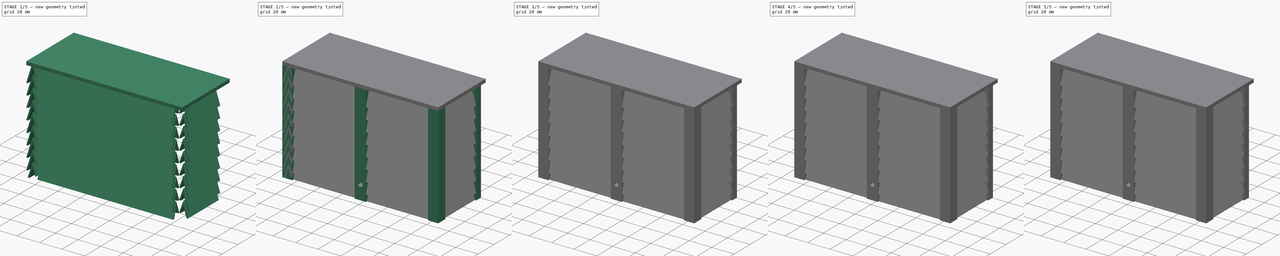
[diagram: build sequence overview — one tinted view per stage of 5, left to right]
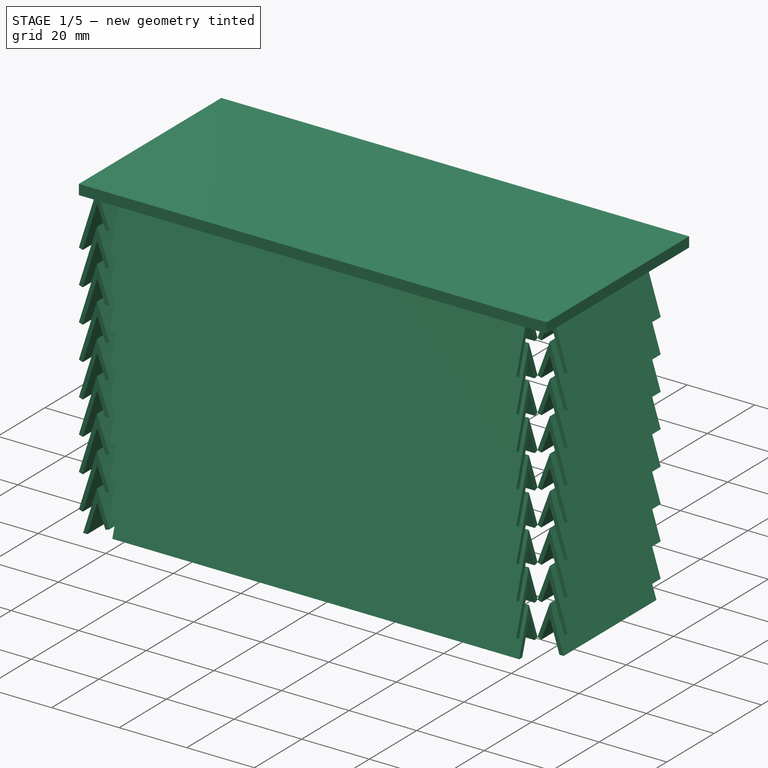
[diagram: stage 1 of 5 — iso view after this stage's code; geometry added in this stage tinted green]
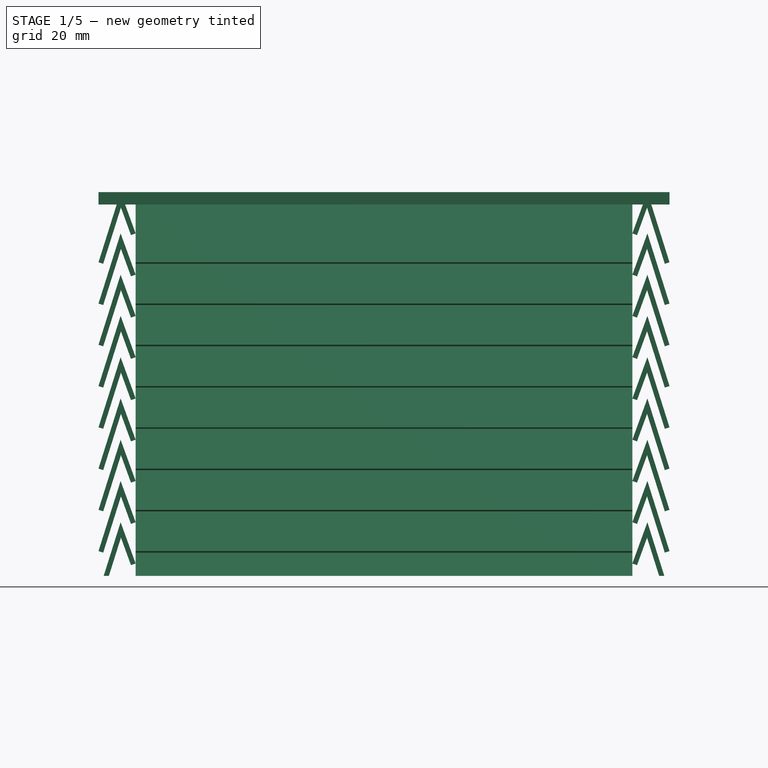
[diagram: stage 1 of 5 — front view after this stage's code; geometry added in this stage tinted green]
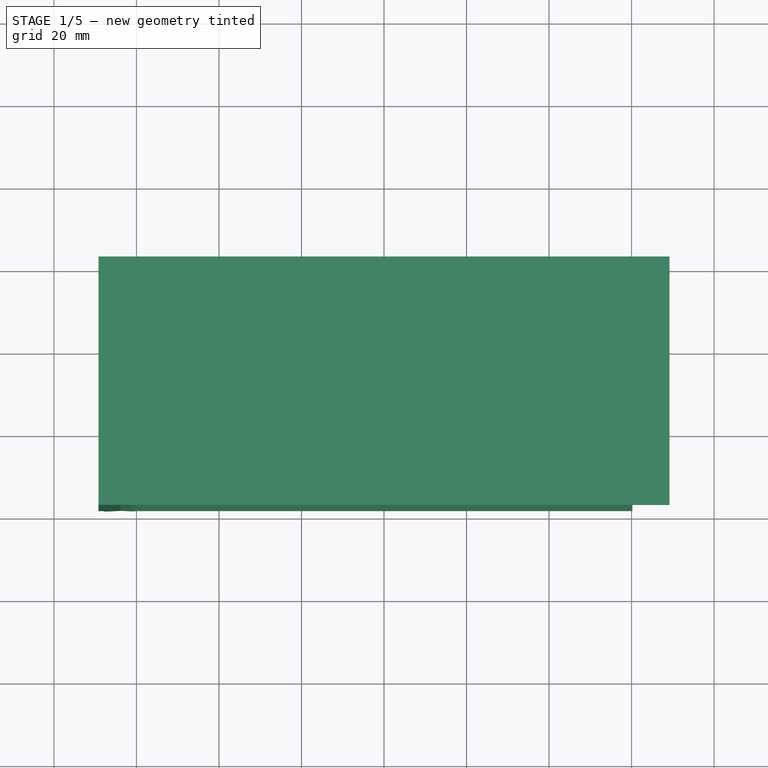
[diagram: stage 1 of 5 — top view after this stage's code; geometry added in this stage tinted green]
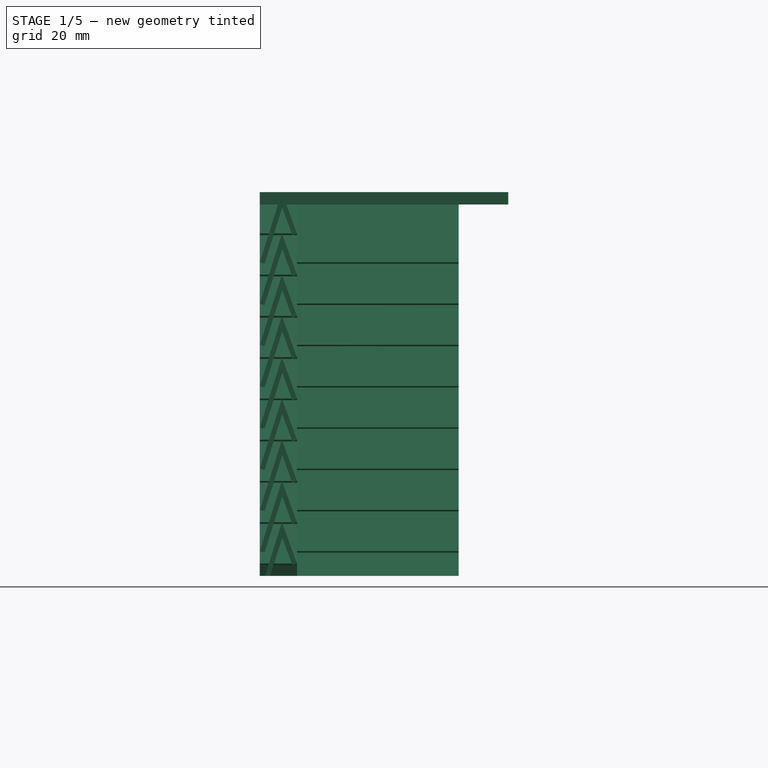
[diagram: stage 1 of 5 — right view after this stage's code; geometry added in this stage tinted green]
FCSTD DOCUMENT  (FreeCAD 0.21R33668 +26 (Git))
Label: Housing
License: All rights reserved
LicenseURL: http://en.wikipedia.org/wiki/All_rights_reserved
objects: Sketcher::SketchObject×15, Part::Extrusion×15, Part::MultiFuse×4, Part::Cut×4, Part::Box×1
note: 39 computed .brp shape members not serialized (recipe doc carries the construction recipe); baked Part::Feature solids carry a one-line shape summary decoded from their .brp

FEATURE [Part::Box] Box  label="Roof"
  AttacherType = Attacher::AttachEngine3D
  Height = 3
  Length = 138.4
  Placement = pos=(-69.2,-38.2,85) rot=(0,0,1;0rad)
  Width = 60.2
FEATURE [Sketcher::SketchObject] Sketch016
  FullyConstrained = true
  Placement = pos=(0,0,-5) rot=(0,0,1;0rad)
  sketch-geometry (22):
    g0: LineSegment StartX=69.2 StartY=16 StartZ=0 EndX=60.2 EndY=16 EndZ=0
    g1: LineSegment StartX=60.2 StartY=16 StartZ=0 EndX=63.2 EndY=13 EndZ=0
    g2: LineSegment StartX=63.2 StartY=13 StartZ=0 EndX=60.2 EndY=10 EndZ=0
    g3: LineSegment StartX=60.2 StartY=10 StartZ=0 EndX=69.2 EndY=10 EndZ=0
    g4: LineSegment StartX=69.2 StartY=16 StartZ=0 EndX=69.2 EndY=10 EndZ=0
    g5: LineSegment StartX=-60.2 StartY=16 StartZ=0 EndX=-69.2 EndY=16 EndZ=0
    g6: LineSegment StartX=-69.2 StartY=16 StartZ=0 EndX=-69.2 EndY=10 EndZ=0
    g7: LineSegment StartX=-69.2 StartY=10 StartZ=0 EndX=-60.2 EndY=10 EndZ=0
    g8: LineSegment StartX=-60.2 StartY=10 StartZ=0 EndX=-63.2 EndY=13 EndZ=0
    g9: LineSegment StartX=-63.2 StartY=13 StartZ=0 EndX=-60.2 EndY=16 EndZ=0
    g10: LineSegment StartX=-60.2 StartY=-29.2 StartZ=0 EndX=-69.2 EndY=-29.2 EndZ=0
    g11: LineSegment StartX=-69.2 StartY=-29.2 StartZ=0 EndX=-69.2 EndY=-38.2 EndZ=0
    g12: LineSegment StartX=-69.2 StartY=-38.2 StartZ=0 EndX=-60.2 EndY=-38.2 EndZ=0
    g13: LineSegment StartX=-60.2 StartY=-38.2 StartZ=0 EndX=-60.2 EndY=-29.2 EndZ=0
    g14: LineSegment StartX=5 StartY=-29.2 StartZ=0 EndX=-5 EndY=-29.2 EndZ=0
    g15: LineSegment StartX=-5 StartY=-29.2 StartZ=0 EndX=-5 EndY=-38.2 EndZ=0
    g16: LineSegment StartX=-5 StartY=-38.2 StartZ=0 EndX=5 EndY=-38.2 EndZ=0
    g17: LineSegment StartX=5 StartY=-38.2 StartZ=0 EndX=5 EndY=-29.2 EndZ=0
    g18: LineSegment StartX=60.2 StartY=-29.2 StartZ=0 EndX=69.2 EndY=-29.2 EndZ=0
    g19: LineSegment StartX=69.2 StartY=-29.2 StartZ=0 EndX=69.2 EndY=-38.2 EndZ=0
    g20: LineSegment StartX=69.2 StartY=-38.2 StartZ=0 EndX=60.2 EndY=-38.2 EndZ=0
    g21: LineSegment StartX=60.2 StartY=-38.2 StartZ=0 EndX=60.2 EndY=-29.2 EndZ=0
  constraints (64):
    c: Horizontal(g0)
    c: Coincident(g1,g0)
    c: Coincident(g2,g1)
    c: Coincident(g3,g2)
    c: Horizontal(g3)
    c: Coincident(g4,g0)
    c: Vertical(g4)
    c: Coincident(g3,g4)
    c: Angle(g1) = -0.785398
    c: Perpendicular(g2,g1)
    c: Equal(g2,g1)
    c: DistanceX(g1,g0) = 6
    c: Horizontal(g5)
    c: Coincident(g6,g5)
    c: Vertical(g6)
    c: Horizontal(g7)
    c: Coincident(g8,g7)
    c: Coincident(g9,g8)
    c: Coincident(g9,g5)
    c: Horizontal(g0,g5)
    c: Horizontal(g6,g3)
    c: Parallel(g2,g9)
    c: Parallel(g8,g1)
    c: Equal(g3,g7)
    c: Coincident(g6,g7)
    c: Symmetric(g1,g8,g-2)
    c: Coincident(g10,g11)
    c: Coincident(g11,g12)
    c: Coincident(g12,g13)
    c: Coincident(g13,g10)
    c: Horizontal(g10)
    c: Horizontal(g12)
    c: Vertical(g11)
    c: Vertical(g13)
    c: Coincident(g14,g15)
    c: Coincident(g15,g16)
    c: Coincident(g16,g17)
    c: Coincident(g17,g14)
    c: Horizontal(g16)
    c: Vertical(g15)
    c: Vertical(g17)
    c: Coincident(g18,g19)
    c: Coincident(g19,g20)
    c: Coincident(g20,g21)
    c: Coincident(g21,g18)
    c: Horizontal(g18)
    c: Horizontal(g20)
    c: Vertical(g19)
    c: Vertical(g21)
    c: Vertical(g6,g10)
    c: Vertical(g5,g12)
    c: Horizontal(g10,g14)
    c: Horizontal(g14,g18)
    c: Horizontal(g12,g15)
    c: Horizontal(g15,g20)
    c: Vertical(g2,g18)
    c: Vertical(g19,g0)
    c: Symmetric(g14,g14,g-2)
    c: Equal(g11,g10)
    c: DistanceX(g20,g20) = 9
    c: DistanceX(g5,g0) = 138.4
    c: DistanceY(g-1,g5) = 16
    c: DistanceY(g10,g-1) = 29.2
    c: DistanceX(g14,g14) = 10
FEATURE [Part::Extrusion] Extrude018  label="Main columns"
  Base = -> Sketch016
  Dir = (0,0,1)
  DirMode = 2
  FaceMakerClass = Part::FaceMakerBullseye
  LengthFwd = 93
  LengthRev = 0
  Solid = true
  Symmetric = false
FEATURE [Sketcher::SketchObject] Sketch027
  FullyConstrained = true
  Placement = pos=(0,0,0) rot=(0.57735,0.57735,0.57735;2.0944rad)
  sketch-geometry (54):
    g0: LineSegment StartX=-38.2 StartY=71 StartZ=0 EndX=-32.8397 EndY=88 EndZ=0
    g1: LineSegment StartX=-32.8397 StartY=88 StartZ=0 EndX=-29.2 EndY=78 EndZ=0
    g2: LineSegment StartX=-29.2 StartY=78 StartZ=0 EndX=-30.3276 EndY=77.5896 EndZ=0
    g3: LineSegment StartX=-30.3276 StartY=77.5896 StartZ=0 EndX=-32.7583 EndY=84.2677 EndZ=0
    g4: LineSegment StartX=-32.7583 StartY=84.2677 StartZ=0 EndX=-37.0555 EndY=70.6391 EndZ=0
    g5: LineSegment StartX=-37.0555 StartY=70.6391 StartZ=0 EndX=-38.2 EndY=71 EndZ=0
    g6: LineSegment StartX=-32.8397 StartY=78 StartZ=0 EndX=-29.2 EndY=68 EndZ=0
    g7: LineSegment StartX=-32.8397 StartY=78 StartZ=0 EndX=-38.2 EndY=61 EndZ=0
    g8: LineSegment StartX=-38.2 StartY=61 StartZ=0 EndX=-37.0555 EndY=60.6391 EndZ=0
    g9: LineSegment StartX=-37.0555 StartY=60.6391 StartZ=0 EndX=-32.7583 EndY=74.2677 EndZ=0
    g10: LineSegment StartX=-32.7583 StartY=74.2677 StartZ=0 EndX=-30.3276 EndY=67.5896 EndZ=0
    g11: LineSegment StartX=-30.3276 StartY=67.5896 StartZ=0 EndX=-29.2 EndY=68 EndZ=0
    g12: LineSegment StartX=-32.8397 StartY=68 StartZ=0 EndX=-29.2 EndY=58 EndZ=0
    g13: LineSegment StartX=-32.8397 StartY=68 StartZ=0 EndX=-38.2 EndY=51 EndZ=0
    g14: LineSegment StartX=-38.2 StartY=51 StartZ=0 EndX=-37.0555 EndY=50.6391 EndZ=0
    g15: LineSegment StartX=-37.0555 StartY=50.6391 StartZ=0 EndX=-32.7583 EndY=64.2677 EndZ=0
    g16: LineSegment StartX=-32.7583 StartY=64.2677 StartZ=0 EndX=-30.3276 EndY=57.5896 EndZ=0
    g17: LineSegment StartX=-30.3276 StartY=57.5896 StartZ=0 EndX=-29.2 EndY=58 EndZ=0
    g18: LineSegment StartX=-32.8397 StartY=58 StartZ=0 EndX=-29.2 EndY=48 EndZ=0
    g19: LineSegment StartX=-32.8397 StartY=58 StartZ=0 EndX=-38.2 EndY=41 EndZ=0
    g20: LineSegment StartX=-38.2 StartY=41 StartZ=0 EndX=-37.0555 EndY=40.6391 EndZ=0
    g21: LineSegment StartX=-37.0555 StartY=40.6391 StartZ=0 EndX=-32.7583 EndY=54.2677 EndZ=0
    g22: LineSegment StartX=-32.7583 StartY=54.2677 StartZ=0 EndX=-30.3276 EndY=47.5896 EndZ=0
    g23: LineSegment StartX=-30.3276 StartY=47.5896 StartZ=0 EndX=-29.2 EndY=48 EndZ=0
    g24: LineSegment StartX=-32.8397 StartY=48 StartZ=0 EndX=-29.2 EndY=38 EndZ=0
    g25: LineSegment StartX=-32.8397 StartY=48 StartZ=0 EndX=-38.2 EndY=31 EndZ=0
    g26: LineSegment StartX=-38.2 StartY=31 StartZ=0 EndX=-37.0555 EndY=30.6391 EndZ=0
    g27: LineSegment StartX=-37.0555 StartY=30.6391 StartZ=0 EndX=-32.7583 EndY=44.2677 EndZ=0
    g28: LineSegment StartX=-32.7583 StartY=44.2677 StartZ=0 EndX=-30.3276 EndY=37.5896 EndZ=0
    g29: LineSegment StartX=-30.3276 StartY=37.5896 StartZ=0 EndX=-29.2 EndY=38 EndZ=0
    g30: LineSegment StartX=-32.8397 StartY=38 StartZ=0 EndX=-29.2 EndY=28 EndZ=0
    g31: LineSegment StartX=-32.8397 StartY=38 StartZ=0 EndX=-38.2 EndY=21 EndZ=0
    g32: LineSegment StartX=-38.2 StartY=21 StartZ=0 EndX=-37.0555 EndY=20.6391 EndZ=0
    g33: LineSegment StartX=-37.0555 StartY=20.6391 StartZ=0 EndX=-32.7583 EndY=34.2677 EndZ=0
    g34: LineSegment StartX=-32.7583 StartY=34.2677 StartZ=0 EndX=-30.3276 EndY=27.5896 EndZ=0
    g35: LineSegment StartX=-30.3276 StartY=27.5896 StartZ=0 EndX=-29.2 EndY=28 EndZ=0
    g36: LineSegment StartX=-32.8397 StartY=28 StartZ=0 EndX=-29.2 EndY=18 EndZ=0
    g37: LineSegment StartX=-32.8397 StartY=28 StartZ=0 EndX=-38.2 EndY=11 EndZ=0
    g38: LineSegment StartX=-38.2 StartY=11 StartZ=0 EndX=-37.0555 EndY=10.6391 EndZ=0
    g39: LineSegment StartX=-37.0555 StartY=10.6391 StartZ=0 EndX=-32.7583 EndY=24.2677 EndZ=0
    g40: LineSegment StartX=-32.7583 StartY=24.2677 StartZ=0 EndX=-30.3276 EndY=17.5896 EndZ=0
    g41: LineSegment StartX=-30.3276 StartY=17.5896 StartZ=0 EndX=-29.2 EndY=18 EndZ=0
    g42: LineSegment StartX=-32.8397 StartY=18 StartZ=0 EndX=-29.2 EndY=8 EndZ=0
    g43: LineSegment StartX=-32.8397 StartY=18 StartZ=0 EndX=-38.2 EndY=1 EndZ=0
    g44: LineSegment StartX=-38.2 StartY=1 StartZ=0 EndX=-37.0555 EndY=0.63914 EndZ=0
    g45: LineSegment StartX=-37.0555 StartY=0.63914 StartZ=0 EndX=-32.7583 EndY=14.2677 EndZ=0
    g46: LineSegment StartX=-32.7583 StartY=14.2677 StartZ=0 EndX=-30.3276 EndY=7.58958 EndZ=0
    g47: LineSegment StartX=-30.3276 StartY=7.58958 StartZ=0 EndX=-29.2 EndY=8 EndZ=0
    g48: LineSegment StartX=-32.8397 StartY=8 StartZ=0 EndX=-29.2 EndY=-2 EndZ=0
    g49: LineSegment StartX=-32.7583 StartY=4.26775 StartZ=0 EndX=-30.3276 EndY=-2.41042 EndZ=0
    g50: LineSegment StartX=-30.3276 StartY=-2.41042 StartZ=0 EndX=-29.2 EndY=-2 EndZ=0
    g51: LineSegment StartX=-32.8397 StartY=8 StartZ=0 EndX=-36.9388 EndY=-5 EndZ=0
    g52: LineSegment StartX=-32.7583 StartY=4.26775 StartZ=0 EndX=-35.6805 EndY=-5 EndZ=0
    g53: LineSegment StartX=-36.9388 StartY=-5 StartZ=0 EndX=-35.6805 EndY=-5 EndZ=0
  constraints (162):
    c: Coincident(g1,g0)
    c: Coincident(g2,g1)
    c: Coincident(g3,g2)
    c: Coincident(g4,g3)
    c: Coincident(g5,g4)
    c: Coincident(g5,g0)
    c: Distance(g2) = 1.2
    c: Equal(g2,g5)
    c: Perpendicular(g2,g1)
    c: Perpendicular(g2,g3)
    c: Perpendicular(g4,g5)
    c: Perpendicular(g0,g5)
    c: DistanceY(g0,g0) = 17
    c: DistanceY(g1,g0) = 10
    c: DistanceX(g0,g1) = 9
    c: DistanceY(g1) = 78
    c: Angle(g1) = -1.22173
    c: DistanceX(g1,g-1) = 29.2
    c: Horizontal(g6,g1)
    c: Vertical(g1,g6)
    c: Parallel(g6,g1)
    c: Vertical(g6,g0)
    c: Coincident(g7,g6)
    c: Parallel(g7,g0)
    c: Vertical(g7,g0)
    c: Coincident(g8,g7)
    c: Coincident(g9,g8)
    c: Coincident(g10,g9)
    c: Coincident(g11,g10)
    c: Coincident(g11,g6)
    c: Vertical(g3,g9)
    c: Equal(g8,g11)
    c: Equal(g11,g2)
    c: Parallel(g9,g7)
    c: Parallel(g8,g5)
    c: Parallel(g11,g2)
    c: Coincident(g13,g12)
    c: Coincident(g14,g13)
    c: Coincident(g15,g14)
    c: Coincident(g16,g15)
    c: Coincident(g17,g16)
    c: Coincident(g17,g12)
    c: Equal(g14,g17)
    c: Parallel(g15,g13)
    c: Horizontal(g12,g6)
    c: Vertical(g12,g6)
    c: Vertical(g9,g15)
    c: Parallel(g12,g6)
    c: Parallel(g13,g7)
    c: Equal(g17,g11)
    c: Vertical(g6,g12)
    c: Parallel(g17,g11)
    c: Vertical(g13,g7)
    c: Parallel(g14,g8)
    c: Coincident(g19,g18)
    c: Coincident(g20,g19)
    c: Coincident(g21,g20)
    c: Coincident(g22,g21)
    c: Coincident(g23,g22)
    c: Coincident(g23,g18)
    c: Equal(g20,g23)
    c: Parallel(g21,g19)
    c: Coincident(g25,g24)
    c: Coincident(g26,g25)
    c: Coincident(g27,g26)
    c: Coincident(g28,g27)
    c: Coincident(g29,g28)
    c: Coincident(g29,g24)
    c: Equal(g26,g29)
    c: Parallel(g27,g25)
    c: Horizontal(g24,g18)
    c: Vertical(g24,g18)
    c: Vertical(g21,g27)
    c: Parallel(g24,g18)
    c: Parallel(g25,g19)
    c: Equal(g29,g23)
    c: Vertical(g18,g24)
    c: Parallel(g29,g23)
    c: Vertical(g25,g19)
    c: Parallel(g26,g20)
    c: Horizontal(g18,g12)
    c: Parallel(g17,g23)
    c: Vertical(g18,g12)
    c: Vertical(g12,g18)
    c: Vertical(g15,g21)
    c: Equal(g20,g14)
    c: Parallel(g20,g14)
    c: Vertical(g19,g13)
    c: Parallel(g19,g13)
    c: Parallel(g12,g18)
    c: Coincident(g31,g30)
    c: Coincident(g32,g31)
    c: Coincident(g33,g32)
    c: Coincident(g34,g33)
    c: Coincident(g35,g34)
    c: Coincident(g35,g30)
    c: Equal(g32,g35)
    c: Parallel(g33,g31)
    c: Coincident(g37,g36)
    c: Coincident(g38,g37)
    c: Coincident(g39,g38)
    c: Coincident(g40,g39)
    c: Coincident(g41,g40)
    c: Coincident(g41,g36)
    c: Equal(g38,g41)
    c: Parallel(g39,g37)
    c: Horizontal(g36,g30)
    c: Vertical(g36,g30)
    c: Vertical(g33,g39)
    c: Parallel(g36,g30)
    c: Parallel(g37,g31)
    c: Equal(g41,g35)
    c: Vertical(g30,g36)
    c: Parallel(g41,g35)
    c: Vertical(g37,g31)
    c: Parallel(g38,g32)
    c: Coincident(g43,g42)
    c: Coincident(g44,g43)
    c: Coincident(g45,g44)
    c: Coincident(g46,g45)
    c: Coincident(g47,g46)
    c: Coincident(g47,g42)
    c: Equal(g44,g47)
    c: Parallel(g45,g43)
    c: Coincident(g50,g49)
    c: Coincident(g50,g48)
    c: Horizontal(g48,g42)
    c: Vertical(g48,g42)
    c: Vertical(g45,g49)
    c: Parallel(g48,g42)
    c: Equal(g50,g47)
    c: Vertical(g42,g48)
    c: Parallel(g50,g47)
    c: Horizontal(g42,g36)
    c: Parallel(g41,g47)
    c: Vertical(g42,g36)
    c: Vertical(g36,g42)
    c: Vertical(g39,g45)
    c: Equal(g44,g38)
    c: Parallel(g44,g38)
    c: Vertical(g43,g37)
    c: Parallel(g43,g37)
    c: Parallel(g36,g42)
    c: Parallel(g24,g30)
    c: Parallel(g31,g25)
    c: Vertical(g31,g25)
    c: Vertical(g30,g24)
    c: Vertical(g27,g33)
    c: Parallel(g32,g26)
    c: Equal(g32,g26)
    c: Parallel(g35,g29)
    c: Parallel(g34,g28)
    c: Horizontal(g30,g24)
    c: Coincident(g51,g48)
    c: Coincident(g52,g49)
    c: Parallel(g45,g51)
    c: Parallel(g51,g52)
    c: Coincident(g53,g51)
    c: Coincident(g53,g52)
    c: Horizontal(g53)
    c: DistanceY(g52,g0) = 93
    c: Parallel(g49,g48)
FEATURE [Part::Extrusion] Extrude031  label="Front slats"
  Base = -> Sketch027
  Dir = (1,0,0)
  DirMode = 2
  FaceMakerClass = Part::FaceMakerBullseye
  LengthFwd = 120.4
  LengthRev = 0
  Solid = true
  Symmetric = true
FEATURE [Sketcher::SketchObject] Sketch028
  FullyConstrained = true
  MapMode = 5
  Placement = pos=(0,-29.2,0) rot=(0,0.707107,0.707107;3.14159rad)
  Support = -> [Extrude018]
  sketch-geometry (54):
    g0: LineSegment StartX=-69.2 StartY=71 StartZ=0 EndX=-63.8397 EndY=88 EndZ=0
    g1: LineSegment StartX=-63.8397 StartY=88 StartZ=0 EndX=-60.2 EndY=78 EndZ=0
    g2: LineSegment StartX=-60.2 StartY=78 StartZ=0 EndX=-61.3276 EndY=77.5896 EndZ=0
    g3: LineSegment StartX=-61.3276 StartY=77.5896 StartZ=0 EndX=-63.7583 EndY=84.2677 EndZ=0
    g4: LineSegment StartX=-63.7583 StartY=84.2677 StartZ=0 EndX=-68.0555 EndY=70.6391 EndZ=0
    g5: LineSegment StartX=-68.0555 StartY=70.6391 StartZ=0 EndX=-69.2 EndY=71 EndZ=0
    g6: LineSegment StartX=-63.8397 StartY=78 StartZ=0 EndX=-60.2 EndY=68 EndZ=0
    g7: LineSegment StartX=-63.8397 StartY=78 StartZ=0 EndX=-69.2 EndY=61 EndZ=0
    g8: LineSegment StartX=-69.2 StartY=61 StartZ=0 EndX=-68.0555 EndY=60.6391 EndZ=0
    g9: LineSegment StartX=-68.0555 StartY=60.6391 StartZ=0 EndX=-63.7583 EndY=74.2677 EndZ=0
    g10: LineSegment StartX=-63.7583 StartY=74.2677 StartZ=0 EndX=-61.3276 EndY=67.5896 EndZ=0
    g11: LineSegment StartX=-61.3276 StartY=67.5896 StartZ=0 EndX=-60.2 EndY=68 EndZ=0
    g12: LineSegment StartX=-63.8397 StartY=68 StartZ=0 EndX=-60.2 EndY=58 EndZ=0
    g13: LineSegment StartX=-63.8397 StartY=68 StartZ=0 EndX=-69.2 EndY=51 EndZ=0
    g14: LineSegment StartX=-69.2 StartY=51 StartZ=0 EndX=-68.0555 EndY=50.6391 EndZ=0
    g15: LineSegment StartX=-68.0555 StartY=50.6391 StartZ=0 EndX=-63.7583 EndY=64.2677 EndZ=0
    g16: LineSegment StartX=-63.7583 StartY=64.2677 StartZ=0 EndX=-61.3276 EndY=57.5896 EndZ=0
    g17: LineSegment StartX=-61.3276 StartY=57.5896 StartZ=0 EndX=-60.2 EndY=58 EndZ=0
    g18: LineSegment StartX=-63.8397 StartY=58 StartZ=0 EndX=-60.2 EndY=48 EndZ=0
    g19: LineSegment StartX=-63.8397 StartY=58 StartZ=0 EndX=-69.2 EndY=41 EndZ=0
    g20: LineSegment StartX=-69.2 StartY=41 StartZ=0 EndX=-68.0555 EndY=40.6391 EndZ=0
    g21: LineSegment StartX=-68.0555 StartY=40.6391 StartZ=0 EndX=-63.7583 EndY=54.2677 EndZ=0
    g22: LineSegment StartX=-63.7583 StartY=54.2677 StartZ=0 EndX=-61.3276 EndY=47.5896 EndZ=0
    g23: LineSegment StartX=-61.3276 StartY=47.5896 StartZ=0 EndX=-60.2 EndY=48 EndZ=0
    g24: LineSegment StartX=-63.8397 StartY=48 StartZ=0 EndX=-60.2 EndY=38 EndZ=0
    g25: LineSegment StartX=-63.8397 StartY=48 StartZ=0 EndX=-69.2 EndY=31 EndZ=0
    g26: LineSegment StartX=-69.2 StartY=31 StartZ=0 EndX=-68.0555 EndY=30.6391 EndZ=0
    g27: LineSegment StartX=-68.0555 StartY=30.6391 StartZ=0 EndX=-63.7583 EndY=44.2677 EndZ=0
    g28: LineSegment StartX=-63.7583 StartY=44.2677 StartZ=0 EndX=-61.3276 EndY=37.5896 EndZ=0
    g29: LineSegment StartX=-61.3276 StartY=37.5896 StartZ=0 EndX=-60.2 EndY=38 EndZ=0
    g30: LineSegment StartX=-63.8397 StartY=38 StartZ=0 EndX=-60.2 EndY=28 EndZ=0
    g31: LineSegment StartX=-63.8397 StartY=38 StartZ=0 EndX=-69.2 EndY=21 EndZ=0
    g32: LineSegment StartX=-69.2 StartY=21 StartZ=0 EndX=-68.0555 EndY=20.6391 EndZ=0
    g33: LineSegment StartX=-68.0555 StartY=20.6391 StartZ=0 EndX=-63.7583 EndY=34.2677 EndZ=0
    g34: LineSegment StartX=-63.7583 StartY=34.2677 StartZ=0 EndX=-61.3276 EndY=27.5896 EndZ=0
    g35: LineSegment StartX=-61.3276 StartY=27.5896 StartZ=0 EndX=-60.2 EndY=28 EndZ=0
    g36: LineSegment StartX=-63.8397 StartY=28 StartZ=0 EndX=-60.2 EndY=18 EndZ=0
    g37: LineSegment StartX=-63.8397 StartY=28 StartZ=0 EndX=-69.2 EndY=11 EndZ=0
    g38: LineSegment StartX=-69.2 StartY=11 StartZ=0 EndX=-68.0555 EndY=10.6391 EndZ=0
    g39: LineSegment StartX=-68.0555 StartY=10.6391 StartZ=0 EndX=-63.7583 EndY=24.2677 EndZ=0
    g40: LineSegment StartX=-63.7583 StartY=24.2677 StartZ=0 EndX=-61.3276 EndY=17.5896 EndZ=0
    g41: LineSegment StartX=-61.3276 StartY=17.5896 StartZ=0 EndX=-60.2 EndY=18 EndZ=0
    g42: LineSegment StartX=-63.8397 StartY=18 StartZ=0 EndX=-60.2 EndY=8 EndZ=0
    g43: LineSegment StartX=-63.8397 StartY=18 StartZ=0 EndX=-69.2 EndY=1 EndZ=0
    g44: LineSegment StartX=-69.2 StartY=1 StartZ=0 EndX=-68.0555 EndY=0.63914 EndZ=0
    g45: LineSegment StartX=-68.0555 StartY=0.63914 StartZ=0 EndX=-63.7583 EndY=14.2677 EndZ=0
    g46: LineSegment StartX=-63.7583 StartY=14.2677 StartZ=0 EndX=-61.3276 EndY=7.58958 EndZ=0
    g47: LineSegment StartX=-61.3276 StartY=7.58958 StartZ=0 EndX=-60.2 EndY=8 EndZ=0
    g48: LineSegment StartX=-63.8397 StartY=8 StartZ=0 EndX=-60.2 EndY=-2 EndZ=0
    g49: LineSegment StartX=-63.7583 StartY=4.26775 StartZ=0 EndX=-61.3276 EndY=-2.41042 EndZ=0
    g50: LineSegment StartX=-61.3276 StartY=-2.41042 StartZ=0 EndX=-60.2 EndY=-2 EndZ=0
    g51: LineSegment StartX=-63.8397 StartY=8 StartZ=0 EndX=-67.9388 EndY=-5 EndZ=0
    g52: LineSegment StartX=-63.7583 StartY=4.26775 StartZ=0 EndX=-66.6805 EndY=-5 EndZ=0
    g53: LineSegment StartX=-67.9388 StartY=-5 StartZ=0 EndX=-66.6805 EndY=-5 EndZ=0
  constraints (162):
    c: Coincident(g1,g0)
    c: Coincident(g2,g1)
    c: Coincident(g3,g2)
    c: Coincident(g4,g3)
    c: Coincident(g5,g4)
    c: Coincident(g5,g0)
    c: Distance(g2) = 1.2
    c: Equal(g2,g5)
    c: Perpendicular(g2,g1)
    c: Perpendicular(g2,g3)
    c: Perpendicular(g4,g5)
    c: Perpendicular(g0,g5)
    c: DistanceY(g0,g0) = 17
    c: DistanceY(g1,g0) = 10
    c: DistanceX(g0,g1) = 9
    c: DistanceY(g1) = 78
    c: Angle(g1) = -1.22173
    c: Horizontal(g6,g1)
    c: Vertical(g1,g6)
    c: Parallel(g6,g1)
    c: Vertical(g6,g0)
    c: Coincident(g7,g6)
    c: Parallel(g7,g0)
    c: Vertical(g7,g0)
    c: Coincident(g8,g7)
    c: Coincident(g9,g8)
    c: Coincident(g10,g9)
    c: Coincident(g11,g10)
    c: Coincident(g11,g6)
    c: Vertical(g3,g9)
    c: Equal(g8,g11)
    c: Equal(g11,g2)
    c: Parallel(g9,g7)
    c: Parallel(g8,g5)
    c: Parallel(g11,g2)
    c: Coincident(g13,g12)
    c: Coincident(g14,g13)
    c: Coincident(g15,g14)
    c: Coincident(g16,g15)
    c: Coincident(g17,g16)
    c: Coincident(g17,g12)
    c: Equal(g14,g17)
    c: Parallel(g15,g13)
    c: Horizontal(g12,g6)
    c: Vertical(g12,g6)
    c: Vertical(g9,g15)
    c: Parallel(g12,g6)
    c: Parallel(g13,g7)
    c: Equal(g17,g11)
    c: Vertical(g6,g12)
    c: Parallel(g17,g11)
    c: Vertical(g13,g7)
    c: Parallel(g14,g8)
    c: Coincident(g19,g18)
    c: Coincident(g20,g19)
    c: Coincident(g21,g20)
    c: Coincident(g22,g21)
    c: Coincident(g23,g22)
    c: Coincident(g23,g18)
    c: Equal(g20,g23)
    c: Parallel(g21,g19)
    c: Coincident(g25,g24)
    c: Coincident(g26,g25)
    c: Coincident(g27,g26)
    c: Coincident(g28,g27)
    c: Coincident(g29,g28)
    c: Coincident(g29,g24)
    c: Equal(g26,g29)
    c: Parallel(g27,g25)
    c: Horizontal(g24,g18)
    c: Vertical(g24,g18)
    c: Vertical(g21,g27)
    c: Parallel(g24,g18)
    c: Parallel(g25,g19)
    c: Equal(g29,g23)
    c: Vertical(g18,g24)
    c: Parallel(g29,g23)
    c: Vertical(g25,g19)
    c: Parallel(g26,g20)
    c: Horizontal(g18,g12)
    c: Parallel(g17,g23)
    c: Vertical(g18,g12)
    c: Vertical(g12,g18)
    c: Vertical(g15,g21)
    c: Equal(g20,g14)
    c: Parallel(g20,g14)
    c: Vertical(g19,g13)
    c: Parallel(g19,g13)
    c: Parallel(g12,g18)
    c: Coincident(g31,g30)
    c: Coincident(g32,g31)
    c: Coincident(g33,g32)
    c: Coincident(g34,g33)
    c: Coincident(g35,g34)
    c: Coincident(g35,g30)
    c: Equal(g32,g35)
    c: Parallel(g33,g31)
    c: Coincident(g37,g36)
    c: Coincident(g38,g37)
    c: Coincident(g39,g38)
    c: Coincident(g40,g39)
    c: Coincident(g41,g40)
    c: Coincident(g41,g36)
    c: Equal(g38,g41)
    c: Parallel(g39,g37)
    c: Horizontal(g36,g30)
    c: Vertical(g36,g30)
    c: Vertical(g33,g39)
    c: Parallel(g36,g30)
    c: Parallel(g37,g31)
    c: Equal(g41,g35)
    c: Vertical(g30,g36)
    c: Parallel(g41,g35)
    c: Vertical(g37,g31)
    c: Parallel(g38,g32)
    c: Coincident(g43,g42)
    c: Coincident(g44,g43)
    c: Coincident(g45,g44)
    c: Coincident(g46,g45)
    c: Coincident(g47,g46)
    c: Coincident(g47,g42)
    c: Equal(g44,g47)
    c: Parallel(g45,g43)
    c: Coincident(g50,g49)
    c: Coincident(g50,g48)
    c: Horizontal(g48,g42)
    c: Vertical(g48,g42)
    c: Vertical(g45,g49)
    c: Parallel(g48,g42)
    c: Equal(g50,g47)
    c: Vertical(g42,g48)
    c: Parallel(g50,g47)
    c: Horizontal(g42,g36)
    c: Parallel(g41,g47)
    c: Vertical(g42,g36)
    c: Vertical(g36,g42)
    c: Vertical(g39,g45)
    c: Equal(g44,g38)
    c: Parallel(g44,g38)
    c: Vertical(g43,g37)
    c: Parallel(g43,g37)
    c: Parallel(g36,g42)
    c: Parallel(g24,g30)
    c: Parallel(g31,g25)
    c: Vertical(g31,g25)
    c: Vertical(g30,g24)
    c: Vertical(g27,g33)
    c: Parallel(g32,g26)
    c: Equal(g32,g26)
    c: Parallel(g35,g29)
    c: Parallel(g34,g28)
    c: Horizontal(g30,g24)
    c: Coincident(g51,g48)
    c: Coincident(g52,g49)
    c: Parallel(g45,g51)
    c: Parallel(g51,g52)
    c: Coincident(g53,g51)
    c: Coincident(g53,g52)
    c: Horizontal(g53)
    c: DistanceY(g52,g0) = 93
    c: Parallel(g49,g48)
    c: DistanceX(g48,g-1) = 60.2
FEATURE [Part::Extrusion] Extrude032  label="Right side slats"
  Base = -> Sketch028
  Dir = (0,1,-2e-16)
  DirMode = 2
  FaceMakerClass = Part::FaceMakerBullseye
  LengthFwd = 39.2
  LengthRev = 0
  Solid = true
  Symmetric = false
FEATURE [Sketcher::SketchObject] Sketch029
  FullyConstrained = true
  MapMode = 5
  Placement = pos=(0,-38.2,0) rot=(1,0,0;1.5708rad)
  Support = -> [Extrude018]
  sketch-geometry (54):
    g0: LineSegment StartX=-69.2 StartY=71 StartZ=0 EndX=-63.8397 EndY=88 EndZ=0
    g1: LineSegment StartX=-63.8397 StartY=88 StartZ=0 EndX=-60.2 EndY=78 EndZ=0
    g2: LineSegment StartX=-60.2 StartY=78 StartZ=0 EndX=-61.3276 EndY=77.5896 EndZ=0
    g3: LineSegment StartX=-61.3276 StartY=77.5896 StartZ=0 EndX=-63.7583 EndY=84.2677 EndZ=0
    g4: LineSegment StartX=-63.7583 StartY=84.2677 StartZ=0 EndX=-68.0555 EndY=70.6391 EndZ=0
    g5: LineSegment StartX=-68.0555 StartY=70.6391 StartZ=0 EndX=-69.2 EndY=71 EndZ=0
    g6: LineSegment StartX=-63.8397 StartY=78 StartZ=0 EndX=-60.2 EndY=68 EndZ=0
    g7: LineSegment StartX=-63.8397 StartY=78 StartZ=0 EndX=-69.2 EndY=61 EndZ=0
    g8: LineSegment StartX=-69.2 StartY=61 StartZ=0 EndX=-68.0555 EndY=60.6391 EndZ=0
    g9: LineSegment StartX=-68.0555 StartY=60.6391 StartZ=0 EndX=-63.7583 EndY=74.2677 EndZ=0
    g10: LineSegment StartX=-63.7583 StartY=74.2677 StartZ=0 EndX=-61.3276 EndY=67.5896 EndZ=0
    g11: LineSegment StartX=-61.3276 StartY=67.5896 StartZ=0 EndX=-60.2 EndY=68 EndZ=0
    g12: LineSegment StartX=-63.8397 StartY=68 StartZ=0 EndX=-60.2 EndY=58 EndZ=0
    g13: LineSegment StartX=-63.8397 StartY=68 StartZ=0 EndX=-69.2 EndY=51 EndZ=0
    g14: LineSegment StartX=-69.2 StartY=51 StartZ=0 EndX=-68.0555 EndY=50.6391 EndZ=0
    g15: LineSegment StartX=-68.0555 StartY=50.6391 StartZ=0 EndX=-63.7583 EndY=64.2677 EndZ=0
    g16: LineSegment StartX=-63.7583 StartY=64.2677 StartZ=0 EndX=-61.3276 EndY=57.5896 EndZ=0
    g17: LineSegment StartX=-61.3276 StartY=57.5896 StartZ=0 EndX=-60.2 EndY=58 EndZ=0
    g18: LineSegment StartX=-63.8397 StartY=58 StartZ=0 EndX=-60.2 EndY=48 EndZ=0
    g19: LineSegment StartX=-63.8397 StartY=58 StartZ=0 EndX=-69.2 EndY=41 EndZ=0
    g20: LineSegment StartX=-69.2 StartY=41 StartZ=0 EndX=-68.0555 EndY=40.6391 EndZ=0
    g21: LineSegment StartX=-68.0555 StartY=40.6391 StartZ=0 EndX=-63.7583 EndY=54.2677 EndZ=0
    g22: LineSegment StartX=-63.7583 StartY=54.2677 StartZ=0 EndX=-61.3276 EndY=47.5896 EndZ=0
    g23: LineSegment StartX=-61.3276 StartY=47.5896 StartZ=0 EndX=-60.2 EndY=48 EndZ=0
    g24: LineSegment StartX=-63.8397 StartY=48 StartZ=0 EndX=-60.2 EndY=38 EndZ=0
    g25: LineSegment StartX=-63.8397 StartY=48 StartZ=0 EndX=-69.2 EndY=31 EndZ=0
    g26: LineSegment StartX=-69.2 StartY=31 StartZ=0 EndX=-68.0555 EndY=30.6391 EndZ=0
    g27: LineSegment StartX=-68.0555 StartY=30.6391 StartZ=0 EndX=-63.7583 EndY=44.2677 EndZ=0
    g28: LineSegment StartX=-63.7583 StartY=44.2677 StartZ=0 EndX=-61.3276 EndY=37.5896 EndZ=0
    g29: LineSegment StartX=-61.3276 StartY=37.5896 StartZ=0 EndX=-60.2 EndY=38 EndZ=0
    g30: LineSegment StartX=-63.8397 StartY=38 StartZ=0 EndX=-60.2 EndY=28 EndZ=0
    g31: LineSegment StartX=-63.8397 StartY=38 StartZ=0 EndX=-69.2 EndY=21 EndZ=0
    g32: LineSegment StartX=-69.2 StartY=21 StartZ=0 EndX=-68.0555 EndY=20.6391 EndZ=0
    g33: LineSegment StartX=-68.0555 StartY=20.6391 StartZ=0 EndX=-63.7583 EndY=34.2677 EndZ=0
    g34: LineSegment StartX=-63.7583 StartY=34.2677 StartZ=0 EndX=-61.3276 EndY=27.5896 EndZ=0
    g35: LineSegment StartX=-61.3276 StartY=27.5896 StartZ=0 EndX=-60.2 EndY=28 EndZ=0
    g36: LineSegment StartX=-63.8397 StartY=28 StartZ=0 EndX=-60.2 EndY=18 EndZ=0
    g37: LineSegment StartX=-63.8397 StartY=28 StartZ=0 EndX=-69.2 EndY=11 EndZ=0
    g38: LineSegment StartX=-69.2 StartY=11 StartZ=0 EndX=-68.0555 EndY=10.6391 EndZ=0
    g39: LineSegment StartX=-68.0555 StartY=10.6391 StartZ=0 EndX=-63.7583 EndY=24.2677 EndZ=0
    g40: LineSegment StartX=-63.7583 StartY=24.2677 StartZ=0 EndX=-61.3276 EndY=17.5896 EndZ=0
    g41: LineSegment StartX=-61.3276 StartY=17.5896 StartZ=0 EndX=-60.2 EndY=18 EndZ=0
    g42: LineSegment StartX=-63.8397 StartY=18 StartZ=0 EndX=-60.2 EndY=8 EndZ=0
    g43: LineSegment StartX=-63.8397 StartY=18 StartZ=0 EndX=-69.2 EndY=1 EndZ=0
    g44: LineSegment StartX=-69.2 StartY=1 StartZ=0 EndX=-68.0555 EndY=0.63914 EndZ=0
    g45: LineSegment StartX=-68.0555 StartY=0.63914 StartZ=0 EndX=-63.7583 EndY=14.2677 EndZ=0
    g46: LineSegment StartX=-63.7583 StartY=14.2677 StartZ=0 EndX=-61.3276 EndY=7.58958 EndZ=0
    g47: LineSegment StartX=-61.3276 StartY=7.58958 StartZ=0 EndX=-60.2 EndY=8 EndZ=0
    g48: LineSegment StartX=-63.8397 StartY=8 StartZ=0 EndX=-60.2 EndY=-2 EndZ=0
    g49: LineSegment StartX=-63.7583 StartY=4.26775 StartZ=0 EndX=-61.3276 EndY=-2.41042 EndZ=0
    g50: LineSegment StartX=-61.3276 StartY=-2.41042 StartZ=0 EndX=-60.2 EndY=-2 EndZ=0
    g51: LineSegment StartX=-63.8397 StartY=8 StartZ=0 EndX=-67.9388 EndY=-5 EndZ=0
    g52: LineSegment StartX=-63.7583 StartY=4.26775 StartZ=0 EndX=-66.6805 EndY=-5 EndZ=0
    g53: LineSegment StartX=-67.9388 StartY=-5 StartZ=0 EndX=-66.6805 EndY=-5 EndZ=0
  constraints (162):
    c: Coincident(g1,g0)
    c: Coincident(g2,g1)
    c: Coincident(g3,g2)
    c: Coincident(g4,g3)
    c: Coincident(g5,g4)
    c: Coincident(g5,g0)
    c: Distance(g2) = 1.2
    c: Equal(g2,g5)
    c: Perpendicular(g2,g1)
    c: Perpendicular(g2,g3)
    c: Perpendicular(g4,g5)
    c: Perpendicular(g0,g5)
    c: DistanceY(g0,g0) = 17
    c: DistanceY(g1,g0) = 10
    c: DistanceX(g0,g1) = 9
    c: DistanceY(g1) = 78
    c: Angle(g1) = -1.22173
    c: Horizontal(g6,g1)
    c: Vertical(g1,g6)
    c: Parallel(g6,g1)
    c: Vertical(g6,g0)
    c: Coincident(g7,g6)
    c: Parallel(g7,g0)
    c: Vertical(g7,g0)
    c: Coincident(g8,g7)
    c: Coincident(g9,g8)
    c: Coincident(g10,g9)
    c: Coincident(g11,g10)
    c: Coincident(g11,g6)
    c: Vertical(g3,g9)
    c: Equal(g8,g11)
    c: Equal(g11,g2)
    c: Parallel(g9,g7)
    c: Parallel(g8,g5)
    c: Parallel(g11,g2)
    c: Coincident(g13,g12)
    c: Coincident(g14,g13)
    c: Coincident(g15,g14)
    c: Coincident(g16,g15)
    c: Coincident(g17,g16)
    c: Coincident(g17,g12)
    c: Equal(g14,g17)
    c: Parallel(g15,g13)
    c: Horizontal(g12,g6)
    c: Vertical(g12,g6)
    c: Vertical(g9,g15)
    c: Parallel(g12,g6)
    c: Parallel(g13,g7)
    c: Equal(g17,g11)
    c: Vertical(g6,g12)
    c: Parallel(g17,g11)
    c: Vertical(g13,g7)
    c: Parallel(g14,g8)
    c: Coincident(g19,g18)
    c: Coincident(g20,g19)
    c: Coincident(g21,g20)
    c: Coincident(g22,g21)
    c: Coincident(g23,g22)
    c: Coincident(g23,g18)
    c: Equal(g20,g23)
    c: Parallel(g21,g19)
    c: Coincident(g25,g24)
    c: Coincident(g26,g25)
    c: Coincident(g27,g26)
    c: Coincident(g28,g27)
    c: Coincident(g29,g28)
    c: Coincident(g29,g24)
    c: Equal(g26,g29)
    c: Parallel(g27,g25)
    c: Horizontal(g24,g18)
    c: Vertical(g24,g18)
    c: Vertical(g21,g27)
    c: Parallel(g24,g18)
    c: Parallel(g25,g19)
    c: Equal(g29,g23)
    c: Vertical(g18,g24)
    c: Parallel(g29,g23)
    c: Vertical(g25,g19)
    c: Parallel(g26,g20)
    c: Horizontal(g18,g12)
    c: Parallel(g17,g23)
    c: Vertical(g18,g12)
    c: Vertical(g12,g18)
    c: Vertical(g15,g21)
    c: Equal(g20,g14)
    c: Parallel(g20,g14)
    c: Vertical(g19,g13)
    c: Parallel(g19,g13)
    c: Parallel(g12,g18)
    c: Coincident(g31,g30)
    c: Coincident(g32,g31)
    c: Coincident(g33,g32)
    c: Coincident(g34,g33)
    c: Coincident(g35,g34)
    c: Coincident(g35,g30)
    c: Equal(g32,g35)
    c: Parallel(g33,g31)
    c: Coincident(g37,g36)
    c: Coincident(g38,g37)
    c: Coincident(g39,g38)
    c: Coincident(g40,g39)
    c: Coincident(g41,g40)
    c: Coincident(g41,g36)
    c: Equal(g38,g41)
    c: Parallel(g39,g37)
    c: Horizontal(g36,g30)
    c: Vertical(g36,g30)
    c: Vertical(g33,g39)
    c: Parallel(g36,g30)
    c: Parallel(g37,g31)
    c: Equal(g41,g35)
    c: Vertical(g30,g36)
    c: Parallel(g41,g35)
    c: Vertical(g37,g31)
    c: Parallel(g38,g32)
    c: Coincident(g43,g42)
    c: Coincident(g44,g43)
    c: Coincident(g45,g44)
    c: Coincident(g46,g45)
    c: Coincident(g47,g46)
    c: Coincident(g47,g42)
    c: Equal(g44,g47)
    c: Parallel(g45,g43)
    c: Coincident(g50,g49)
    c: Coincident(g50,g48)
    c: Horizontal(g48,g42)
    c: Vertical(g48,g42)
    c: Vertical(g45,g49)
    c: Parallel(g48,g42)
    c: Equal(g50,g47)
    c: Vertical(g42,g48)
    c: Parallel(g50,g47)
    c: Horizontal(g42,g36)
    c: Parallel(g41,g47)
    c: Vertical(g42,g36)
    c: Vertical(g36,g42)
    c: Vertical(g39,g45)
    c: Equal(g44,g38)
    c: Parallel(g44,g38)
    c: Vertical(g43,g37)
    c: Parallel(g43,g37)
    c: Parallel(g36,g42)
    c: Parallel(g24,g30)
    c: Parallel(g31,g25)
    c: Vertical(g31,g25)
    c: Vertical(g30,g24)
    c: Vertical(g27,g33)
    c: Parallel(g32,g26)
    c: Equal(g32,g26)
    c: Parallel(g35,g29)
    c: Parallel(g34,g28)
    c: Horizontal(g30,g24)
    c: Coincident(g51,g48)
    c: Coincident(g52,g49)
    c: Parallel(g45,g51)
    c: Parallel(g51,g52)
    c: Coincident(g53,g51)
    c: Coincident(g53,g52)
    c: Horizontal(g53)
    c: DistanceY(g52,g0) = 93
    c: Parallel(g49,g48)
    c: DistanceX(g48,g-1) = 60.2
FEATURE [Part::Extrusion] Extrude033  label="Left side slats"
  Base = -> Sketch029
  Dir = (0,-1,2e-16)
  DirMode = 2
  FaceMakerClass = Part::FaceMakerBullseye
  LengthFwd = 0
  LengthRev = 48.2
  Solid = true
  Symmetric = false
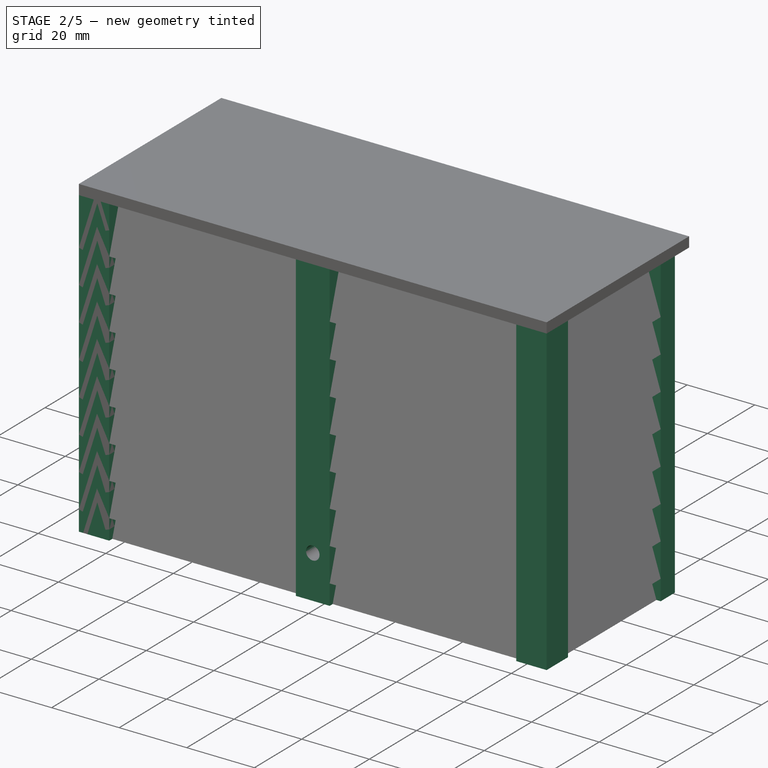
[diagram: stage 2 of 5 — iso view after this stage's code; geometry added in this stage tinted green]
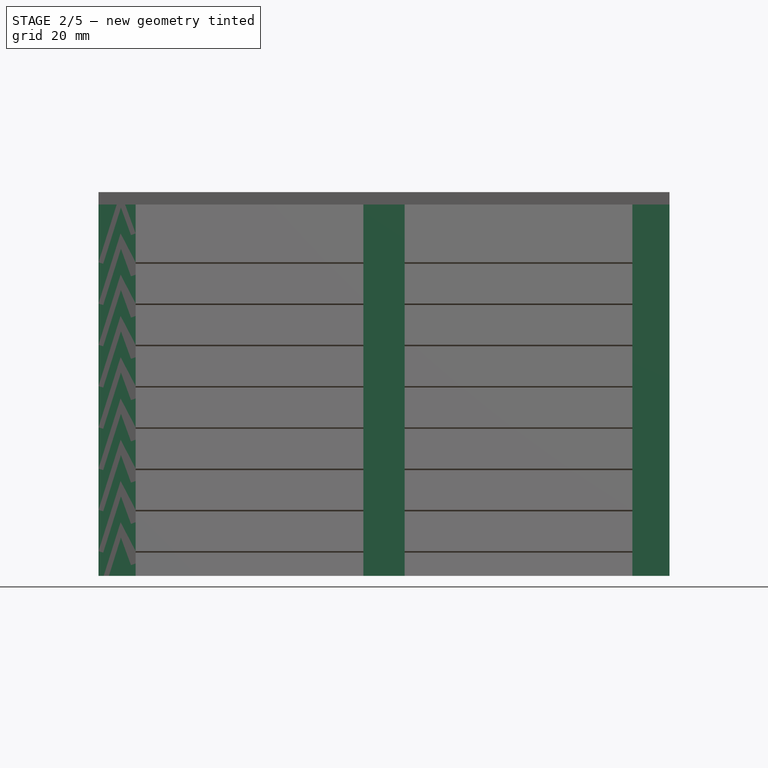
[diagram: stage 2 of 5 — front view after this stage's code; geometry added in this stage tinted green]
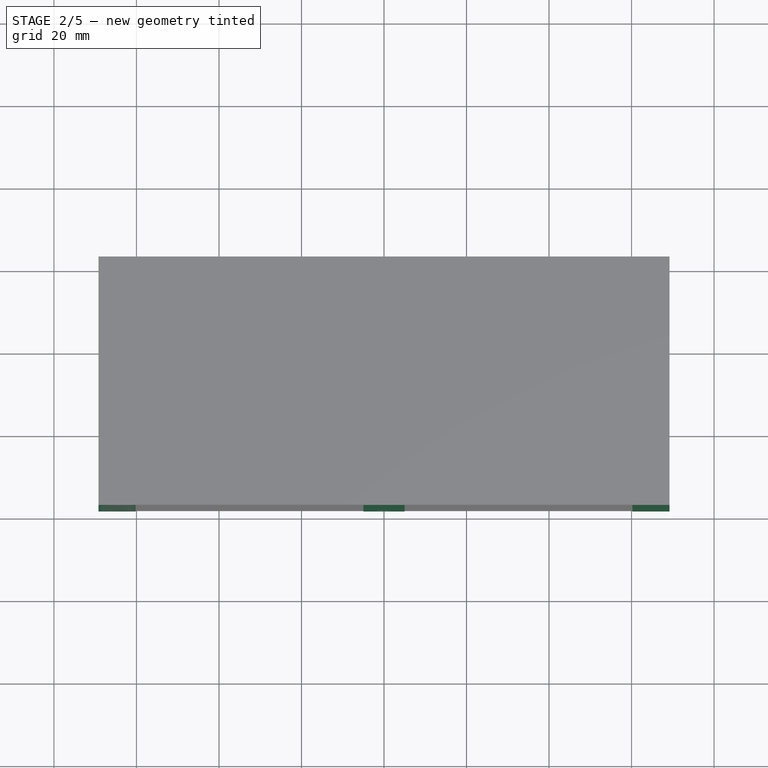
[diagram: stage 2 of 5 — top view after this stage's code; geometry added in this stage tinted green]
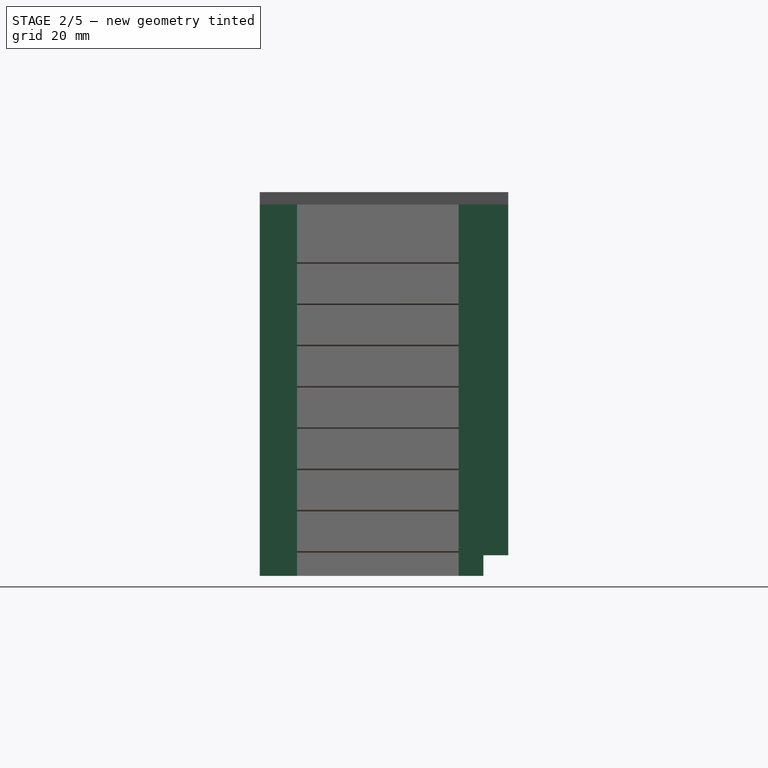
[diagram: stage 2 of 5 — right view after this stage's code; geometry added in this stage tinted green]
FEATURE [Sketcher::SketchObject] Sketch
  FullyConstrained = true
  sketch-geometry (14):
    g0: LineSegment StartX=-60 StartY=16 StartZ=0 EndX=-37 EndY=16 EndZ=0
    g1: LineSegment StartX=-37 StartY=16 StartZ=0 EndX=-37 EndY=22 EndZ=0
    g2: LineSegment StartX=-37 StartY=22 StartZ=0 EndX=-22 EndY=22 EndZ=0
    g3: LineSegment StartX=-22 StartY=22 StartZ=0 EndX=-22 EndY=16 EndZ=0
    g4: LineSegment StartX=-22 StartY=16 StartZ=0 EndX=22 EndY=16 EndZ=0
    g5: LineSegment StartX=22 StartY=16 StartZ=0 EndX=22 EndY=22 EndZ=0
    g6: LineSegment StartX=22 StartY=22 StartZ=0 EndX=37 EndY=22 EndZ=0
    g7: LineSegment StartX=37 StartY=22 StartZ=0 EndX=37 EndY=16 EndZ=0
    g8: LineSegment StartX=37 StartY=16 StartZ=0 EndX=60 EndY=16 EndZ=0
    g9: LineSegment StartX=-60 StartY=16 StartZ=0 EndX=-63 EndY=13 EndZ=0
    g10: LineSegment StartX=-63 StartY=13 StartZ=0 EndX=-60 EndY=10 EndZ=0
    g11: LineSegment StartX=60 StartY=16 StartZ=0 EndX=63 EndY=13 EndZ=0
    g12: LineSegment StartX=63 StartY=13 StartZ=0 EndX=60 EndY=10 EndZ=0
    g13: LineSegment StartX=-60 StartY=10 StartZ=0 EndX=60 EndY=10 EndZ=0
  constraints (40):
    c: Horizontal(g0)
    c: Coincident(g1,g0)
    c: Vertical(g1)
    c: Horizontal(g2)
    c: Vertical(g3)
    c: Horizontal(g4)
    c: Vertical(g5)
    c: Horizontal(g6)
    c: Coincident(g7,g6)
    c: Vertical(g7)
    c: Horizontal(g8)
    c: Coincident(g9,g0)
    c: Coincident(g10,g9)
    c: Coincident(g11,g8)
    c: Coincident(g12,g11)
    c: Coincident(g13,g10)
    c: Coincident(g13,g12)
    c: Horizontal(g13)
    c: Horizontal(g0,g3)
    c: Horizontal(g2,g5)
    c: Coincident(g1,g2)
    c: Coincident(g7,g8)
    c: Coincident(g4,g3)
    c: Coincident(g2,g3)
    c: Coincident(g5,g6)
    c: Coincident(g5,g4)
    c: Symmetric(g0,g8,g-2)
    c: Vertical(g0,g10)
    c: Vertical(g8,g12)
    c: Symmetric(g11,g9,g-2)
    c: DistanceX(g0,g8) = 120
    c: Equal(g2,g6)
    c: DistanceX(g2,g2) = 15
    c: DistanceY(g1,g1) = 6
    c: DistanceY(g10,g0) = 6
    c: Angle(g9) = -2.35619
    c: Perpendicular(g9,g10)
    c: DistanceY(g-1,g12) = 10
    c: DistanceX(g0,g0) = 23
    c: Equal(g0,g8)
FEATURE [Part::Extrusion] Extrude  label="Part 1 back main structure"
  Base = -> Sketch
  Dir = (0,0,1)
  DirMode = 2
  FaceMakerClass = Part::FaceMakerBullseye
  LengthFwd = 85
  LengthRev = 0
  Solid = true
  Symmetric = false
FEATURE [Sketcher::SketchObject] Sketch023
  FullyConstrained = true
  MapMode = 5
  Placement = pos=(37,0,0) rot=(0.57735,0.57735,0.57735;2.0944rad)
  sketch-geometry (8):
    g0: LineSegment StartX=17 StartY=11 StartZ=0 EndX=19 EndY=11 EndZ=0
    g1: LineSegment StartX=19 StartY=11 StartZ=0 EndX=19 EndY=5 EndZ=0
    g2: LineSegment StartX=19 StartY=5 StartZ=0 EndX=17 EndY=5 EndZ=0
    g3: LineSegment StartX=17 StartY=5 StartZ=0 EndX=17 EndY=11 EndZ=0
    g4: LineSegment StartX=17 StartY=80 StartZ=0 EndX=19 EndY=80 EndZ=0
    g5: LineSegment StartX=19 StartY=80 StartZ=0 EndX=19 EndY=74 EndZ=0
    g6: LineSegment StartX=19 StartY=74 StartZ=0 EndX=17 EndY=74 EndZ=0
    g7: LineSegment StartX=17 StartY=74 StartZ=0 EndX=17 EndY=80 EndZ=0
  constraints (24):
    c: Coincident(g0,g1)
    c: Coincident(g1,g2)
    c: Coincident(g2,g3)
    c: Coincident(g3,g0)
    c: Horizontal(g0)
    c: Horizontal(g2)
    c: Vertical(g1)
    c: Vertical(g3)
    c: Coincident(g4,g5)
    c: Coincident(g5,g6)
    c: Coincident(g6,g7)
    c: Coincident(g7,g4)
    c: Horizontal(g4)
    c: Horizontal(g6)
    c: Vertical(g5)
    c: Vertical(g7)
    c: DistanceX(g0,g0) = 2
    c: DistanceY(g1,g1) = 6
    c: Vertical(g0,g6)
    c: Vertical(g0,g5)
    c: Equal(g5,g1)
    c: DistanceX(g2) = 17
    c: DistanceY(g2) = 5
    c: DistanceY(g0,g5) = 63
FEATURE [Part::Extrusion] Extrude026  label="Part 1 back cable tie holes"
  Base = -> Sketch023
  Dir = (1,0,0)
  DirMode = 2
  FaceMakerClass = Part::FaceMakerBullseye
  LengthFwd = 0
  LengthRev = 74
  Solid = true
  Symmetric = false
FEATURE [Sketcher::SketchObject] Sketch022
  FullyConstrained = true
  MapMode = 5
  Placement = pos=(0,-29.2,0) rot=(0,0.707107,0.707107;3.14159rad)
  Support = -> [Extrude018]
  sketch-geometry (1):
    g0: Circle CenterX=0 CenterY=7.8 CenterZ=0 NormalX=0 NormalY=0 NormalZ=1 AngleXU=0 Radius=2
  constraints (3):
    c: PointOnObject(g0,g-2)
    c: DistanceY(g-1,g0) = 7.8
    c: Radius(g0) = 2
FEATURE [Part::Extrusion] Extrude025  label="Part 2 front screw hole"
  Base = -> Sketch022
  Dir = (0,1,-2e-16)
  DirMode = 2
  FaceMakerClass = Part::FaceMakerBullseye
  LengthFwd = 0
  LengthRev = 10
  Solid = true
  Symmetric = false
FEATURE [Part::MultiFuse] Fusion008
  Shapes = -> [Extrude018,Extrude031,Extrude032,Extrude033,Box]
FEATURE [Part::Cut] Cut004  label="Part 2"
  Base = -> Fusion008
  Tool = -> Extrude025
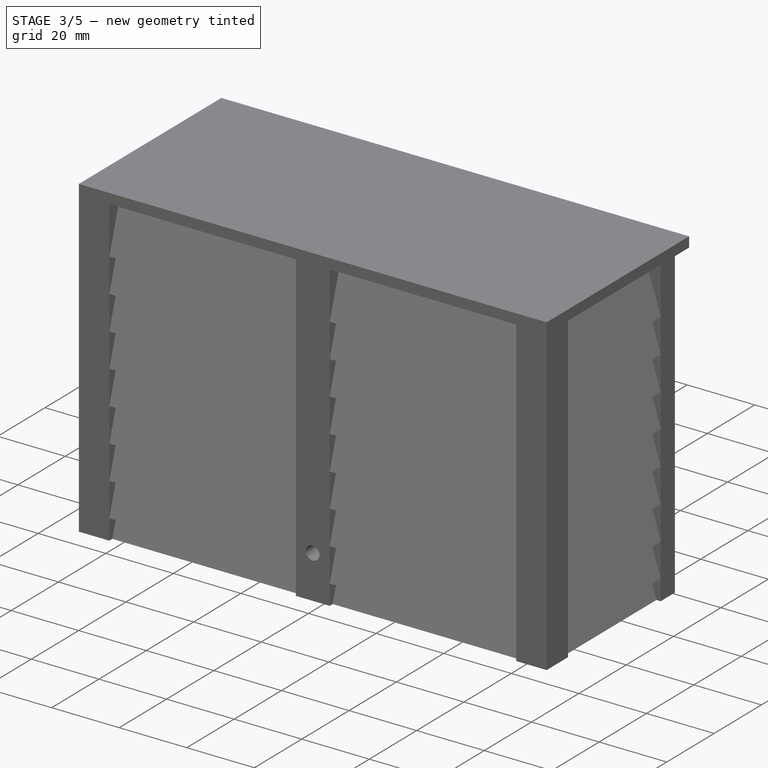
[diagram: stage 3 of 5 — iso view after this stage's code; geometry added in this stage tinted green]
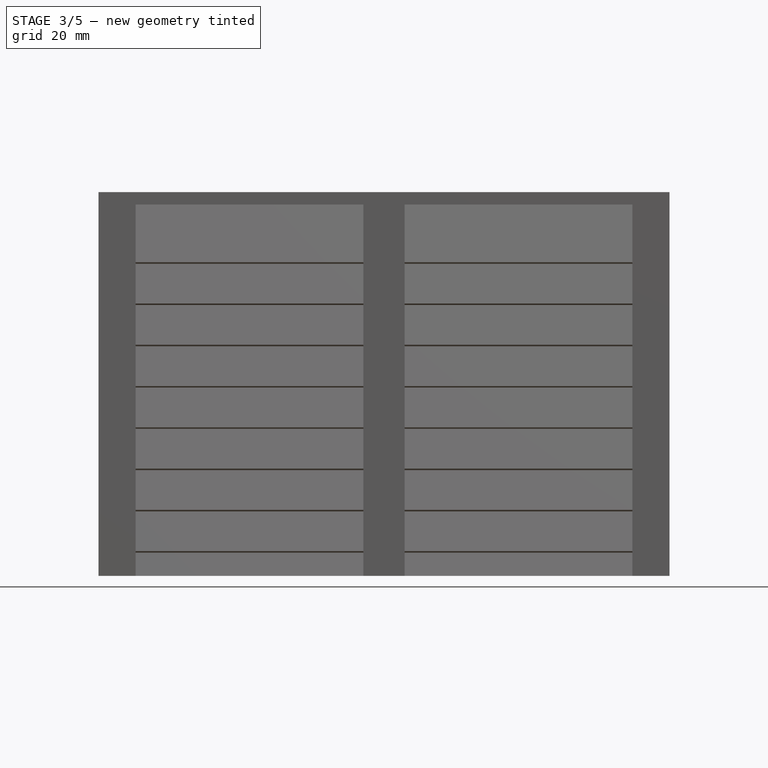
[diagram: stage 3 of 5 — front view after this stage's code; geometry added in this stage tinted green]
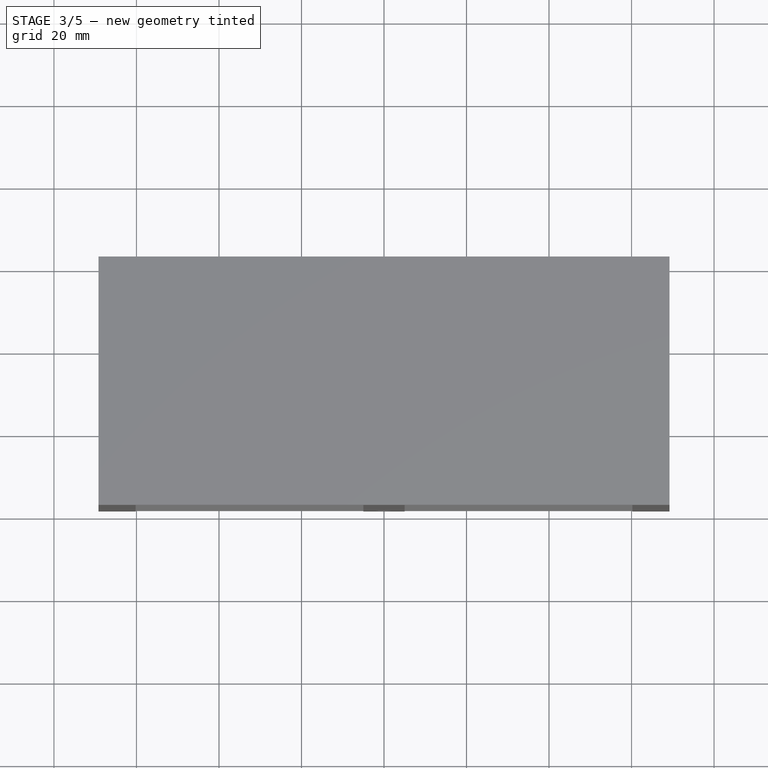
[diagram: stage 3 of 5 — top view after this stage's code; geometry added in this stage tinted green]
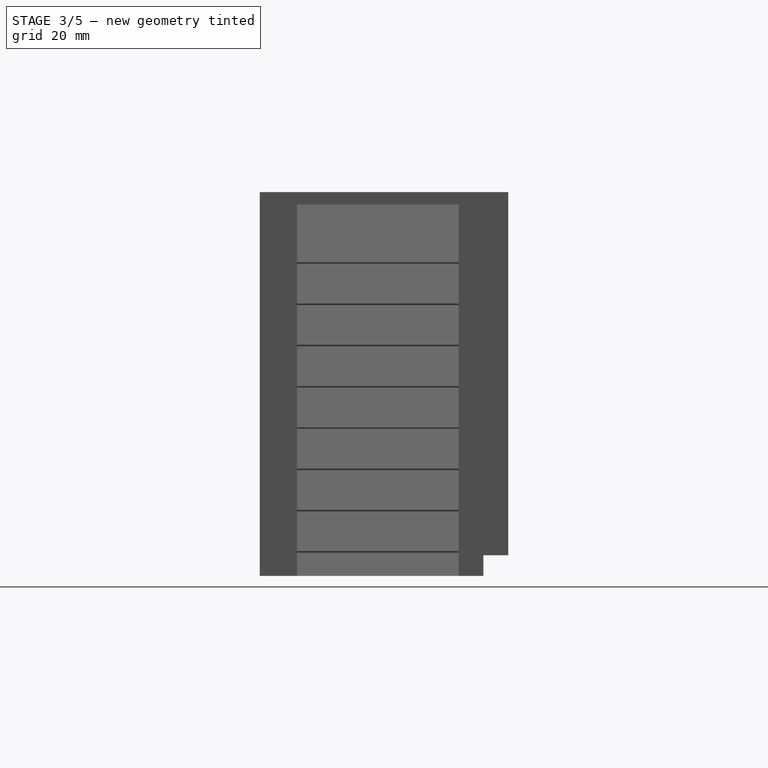
[diagram: stage 3 of 5 — right view after this stage's code; geometry added in this stage tinted green]
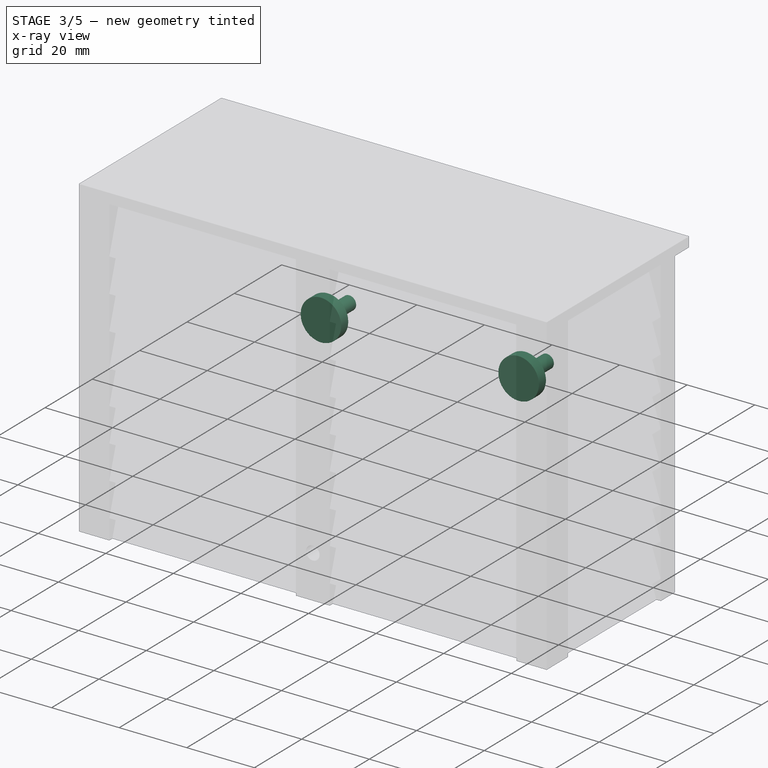
[diagram: stage 3 of 5 — x-ray composite at the iso view; earlier geometry ghosted, this stage's added geometry solid]
FEATURE [Sketcher::SketchObject] Sketch019
  FullyConstrained = true
  MapMode = 5
  Placement = pos=(0,10,0) rot=(1,0,0;1.5708rad)
  sketch-geometry (2):
    g0: Circle CenterX=-29.25 CenterY=45 CenterZ=0 NormalX=0 NormalY=0 NormalZ=1 AngleXU=0 Radius=6
    g1: Circle CenterX=29.25 CenterY=45 CenterZ=0 NormalX=0 NormalY=0 NormalZ=1 AngleXU=0 Radius=6
  constraints (5):
    c: Symmetric(g0,g1,g-2)
    c: DistanceX(g0,g1) = 58.5
    c: DistanceY(g-1,g0) = 45
    c: Radius(g0) = 6
    c: Equal(g0,g1)
FEATURE [Part::Extrusion] Extrude023  label="PCB standoffs"
  Base = -> Sketch019
  Dir = (0,-1,2e-16)
  DirMode = 2
  FaceMakerClass = Part::FaceMakerBullseye
  LengthFwd = 3
  LengthRev = 0
  Solid = true
  Symmetric = false
FEATURE [Part::MultiFuse] Fusion
  Shapes = -> [Extrude,Extrude023]
FEATURE [Sketcher::SketchObject] Sketch021  label="PCB Securing - screws"
  FullyConstrained = true
  MapMode = 5
  Placement = pos=(0,10,0) rot=(1,0,0;1.5708rad)
  Support = -> [Extrude]
  sketch-geometry (2):
    g0: Circle CenterX=-29.25 CenterY=45 CenterZ=0 NormalX=0 NormalY=0 NormalZ=1 AngleXU=0 Radius=2.05
    g1: Circle CenterX=29.25 CenterY=45 CenterZ=0 NormalX=0 NormalY=0 NormalZ=1 AngleXU=0 Radius=2.05
  constraints (5):
    c: Symmetric(g0,g1,g-2)
    c: Radius(g0) = 2.05
    c: Equal(g0,g1)
    c: DistanceY(g-1,g1) = 45
    c: DistanceX(g0,g1) = 58.5
FEATURE [Part::Extrusion] Extrude024  label="Part 1 PCB secure screw holes"
  Base = -> Sketch021
  Dir = (0,-1,2e-16)
  DirMode = 2
  FaceMakerClass = Part::FaceMakerBullseye
  LengthFwd = 3
  LengthRev = 9
  Solid = true
  Symmetric = false
FEATURE [Part::MultiFuse] Fusion006
  Shapes = -> [Extrude026,Extrude024]
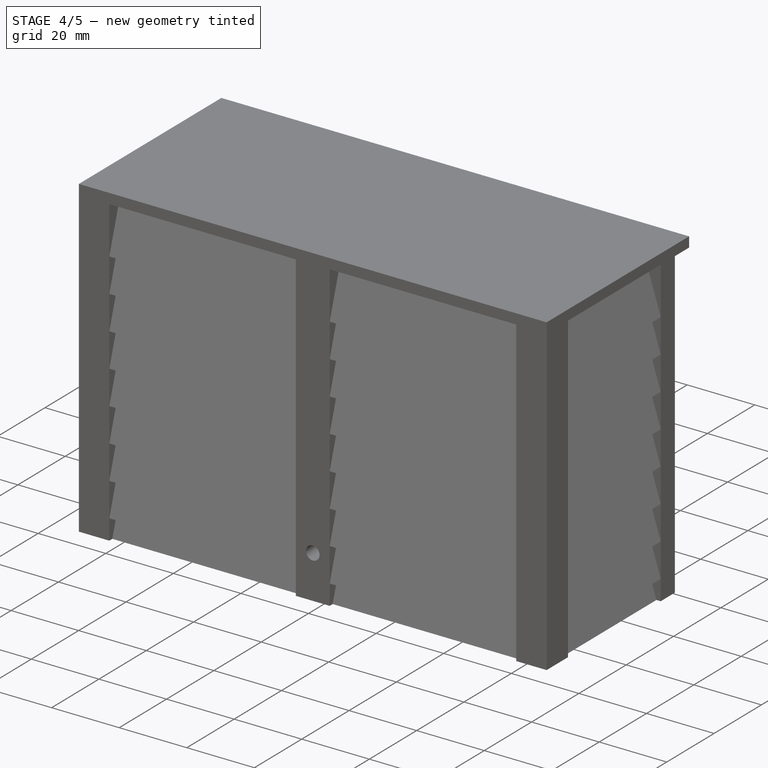
[diagram: stage 4 of 5 — iso view after this stage's code; geometry added in this stage tinted green]
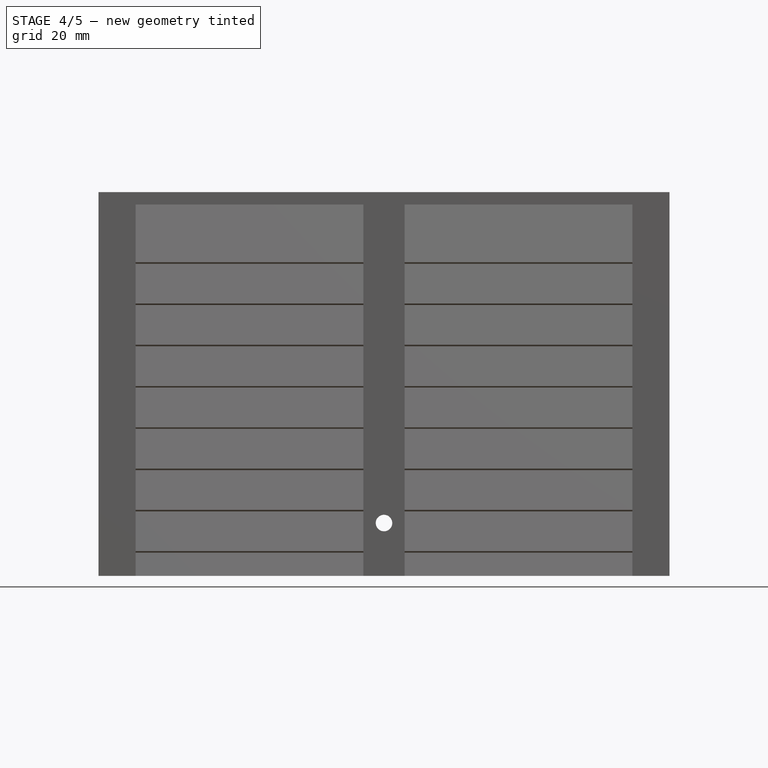
[diagram: stage 4 of 5 — front view after this stage's code; geometry added in this stage tinted green]
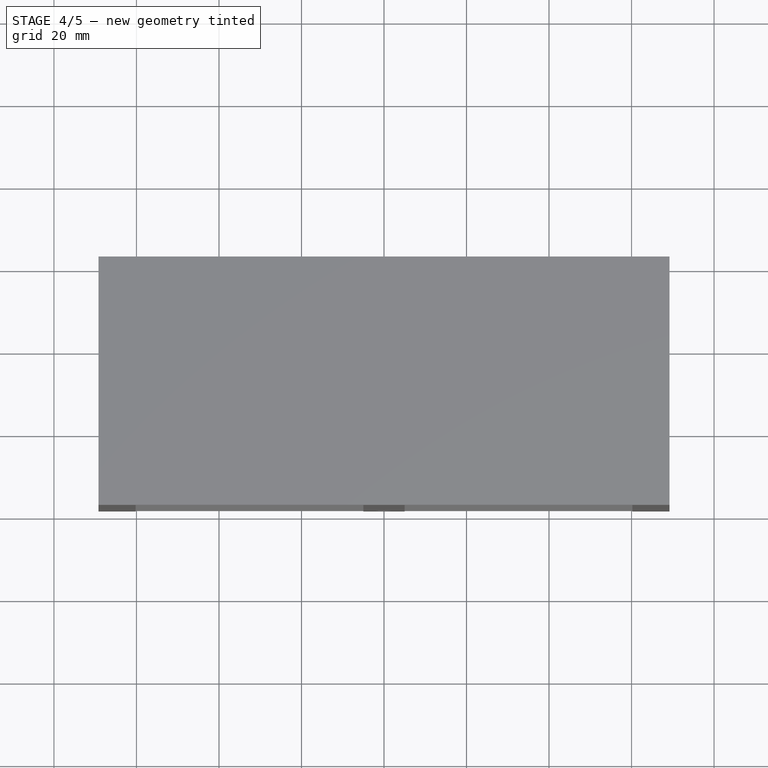
[diagram: stage 4 of 5 — top view after this stage's code; geometry added in this stage tinted green]
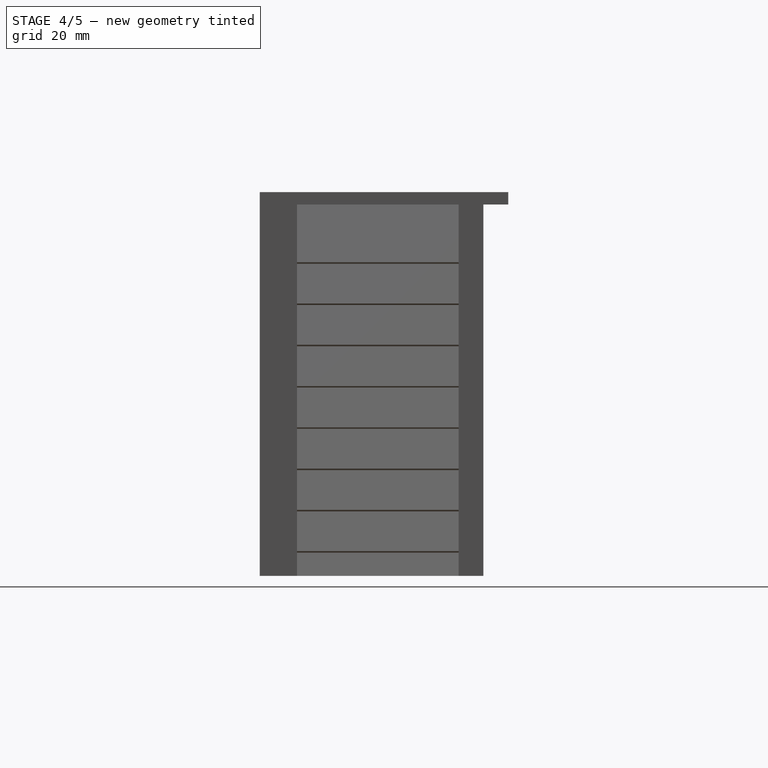
[diagram: stage 4 of 5 — right view after this stage's code; geometry added in this stage tinted green]
FEATURE [Sketcher::SketchObject] Sketch014
  ExternalGeometry = -> [Extrude]
  FullyConstrained = true
  sketch-geometry (9):
    g0: LineSegment StartX=60 StartY=16 StartZ=0 EndX=-60 EndY=16 EndZ=0
    g1: LineSegment StartX=-60 StartY=16 StartZ=0 EndX=-60 EndY=-29 EndZ=0
    g2: LineSegment StartX=-60 StartY=-29 StartZ=0 EndX=60 EndY=-29 EndZ=0
    g3: LineSegment StartX=60 StartY=-29 StartZ=0 EndX=60 EndY=16 EndZ=0
    g4: Circle CenterX=-37.5 CenterY=-6.5 CenterZ=0 NormalX=0 NormalY=0 NormalZ=1 AngleXU=0 Radius=5
    g5: Circle CenterX=37.5 CenterY=-6.5 CenterZ=0 NormalX=0 NormalY=0 NormalZ=1 AngleXU=0 Radius=5
    g6: LineSegment StartX=-60 StartY=16 StartZ=0 EndX=-37.5 EndY=-6.5 EndZ=0
    g7: LineSegment StartX=-60 StartY=-29 StartZ=0 EndX=-37.5 EndY=-6.5 EndZ=0
    g8: Circle CenterX=-12 CenterY=-10 CenterZ=0 NormalX=0 NormalY=0 NormalZ=1 AngleXU=0 Radius=4
  constraints (23):
    c: Coincident(g0,g1)
    c: Coincident(g1,g2)
    c: Coincident(g2,g3)
    c: Coincident(g3,g0)
    c: Horizontal(g2)
    c: Vertical(g1)
    c: Vertical(g3)
    c: PointOnObject(g-3,g0)
    c: Symmetric(g0,g0,g-2)
    c: DistanceY(g3,g3) = 45
    c: Symmetric(g5,g4,g-2)
    c: Coincident(g6,g0)
    c: Coincident(g6,g4)
    c: Angle(g6) = -0.785398
    c: Coincident(g7,g1)
    c: Coincident(g7,g4)
    c: Perpendicular(g6,g7)
    c: Radius(g4) = 5
    c: Equal(g4,g5)
    c: Radius(g8) = 4
    c: PointOnObject(g-4,g1)
    c: DistanceY(g8,g-1) = 10
    c: DistanceX(g8,g-1) = 12
FEATURE [Part::Extrusion] Extrude016  label="Part 1 base"
  Base = -> Sketch014
  Dir = (0,0,1)
  DirMode = 2
  FaceMakerClass = Part::FaceMakerBullseye
  LengthFwd = 2.8
  LengthRev = 0
  Solid = true
  Symmetric = false
FEATURE [Part::Cut] Cut003
  Base = -> Fusion
  Tool = -> Fusion006
FEATURE [Sketcher::SketchObject] Sketch024
  FullyConstrained = true
  MapMode = 5
  Placement = pos=(0,0,2.8) rot=(0,0,1;0rad)
  sketch-geometry (1):
    g0: Circle CenterX=13 CenterY=-8 CenterZ=0 NormalX=0 NormalY=0 NormalZ=1 AngleXU=0 Radius=3
  constraints (3):
    c: DistanceX(g0) = 13
    c: DistanceY(g0) = -8
    c: Radius(g0) = 3
FEATURE [Part::Extrusion] Extrude027  label="Part 1 Antenna hole"
  Base = -> Sketch024
  Dir = (0,0,1)
  DirMode = 2
  FaceMakerClass = Part::FaceMakerBullseye
  LengthFwd = 10
  LengthRev = 0
  Solid = true
  Symmetric = true
FEATURE [Sketcher::SketchObject] Sketch025
  ExternalGeometry = -> [Extrude027,Extrude016]
  FullyConstrained = true
  MapMode = 5
  Placement = pos=(0,0,2.8) rot=(0,0,1;0rad)
  sketch-geometry (22):
    g0: ArcOfCircle CenterX=13 CenterY=-8 CenterZ=0 NormalX=0 NormalY=0 NormalZ=1 AngleXU=0 Radius=3 StartAngle=0.927295 EndAngle=2.2143
    g1: LineSegment StartX=11.2 StartY=-5.6 StartZ=0 EndX=9 EndY=-5.6 EndZ=0
    g2: LineSegment StartX=14.8 StartY=-5.6 StartZ=0 EndX=17 EndY=-5.6 EndZ=0
    g3: LineSegment StartX=7 StartY=-3.6 StartZ=0 EndX=7 EndY=-1.6 EndZ=0
    g4: LineSegment StartX=9 StartY=0.4 StartZ=0 EndX=17 EndY=0.4 EndZ=0
    g5: LineSegment StartX=19 StartY=-1.6 StartZ=0 EndX=19 EndY=-3.6 EndZ=0
    g6: ArcOfCircle CenterX=9 CenterY=-1.6 CenterZ=0 NormalX=0 NormalY=0 NormalZ=1 AngleXU=0 Radius=2 StartAngle=1.5708 EndAngle=3.14159
    g7: ArcOfCircle CenterX=17 CenterY=-1.6 CenterZ=0 NormalX=0 NormalY=0 NormalZ=1 AngleXU=0 Radius=2 StartAngle=0 EndAngle=1.5708
    g8: ArcOfCircle CenterX=17 CenterY=-3.6 CenterZ=0 NormalX=0 NormalY=0 NormalZ=1 AngleXU=0 Radius=2 StartAngle=4.71239 EndAngle=6.28319
    g9: ArcOfCircle CenterX=9 CenterY=-3.6 CenterZ=0 NormalX=0 NormalY=0 NormalZ=1 AngleXU=0 Radius=2 StartAngle=3.14159 EndAngle=4.71239
    g10: LineSegment StartX=13 StartY=-8 StartZ=0 EndX=13 EndY=-5 EndZ=0
    g11: LineSegment StartX=-14.6458 StartY=-7 StartZ=0 EndX=-16 EndY=-7 EndZ=0
    g12: LineSegment StartX=-9.35425 StartY=-7 StartZ=0 EndX=-8 EndY=-7 EndZ=0
    g13: LineSegment StartX=-6 StartY=-5 StartZ=0 EndX=-6 EndY=-3 EndZ=0
    g14: LineSegment StartX=-18 StartY=-5 StartZ=0 EndX=-18 EndY=-3 EndZ=0
    g15: LineSegment StartX=-16 StartY=-1 StartZ=0 EndX=-8 EndY=-1 EndZ=0
    g16: ArcOfCircle CenterX=-16 CenterY=-5 CenterZ=0 NormalX=0 NormalY=0 NormalZ=1 AngleXU=0 Radius=2 StartAngle=3.14159 EndAngle=4.71239
    g17: ArcOfCircle CenterX=-16 CenterY=-3 CenterZ=0 NormalX=0 NormalY=0 NormalZ=1 AngleXU=0 Radius=2 StartAngle=1.5708 EndAngle=3.14159
    g18: ArcOfCircle CenterX=-8 CenterY=-3 CenterZ=0 NormalX=0 NormalY=0 NormalZ=1 AngleXU=0 Radius=2 StartAngle=0 EndAngle=1.5708
    g19: ArcOfCircle CenterX=-8 CenterY=-5 CenterZ=0 NormalX=0 NormalY=0 NormalZ=1 AngleXU=0 Radius=2 StartAngle=4.71239 EndAngle=6.28319
    g20: LineSegment StartX=-12 StartY=-10 StartZ=0 EndX=-12 EndY=-6 EndZ=0
    g21: ArcOfCircle CenterX=-12 CenterY=-10 CenterZ=0 NormalX=0 NormalY=0 NormalZ=1 AngleXU=0 Radius=4 StartAngle=0.848062 EndAngle=2.29353
  constraints (59):
    c: DistanceX(g4,g4) = 8
    c: DistanceY(g5,g5) = 2
    c: Radius(g7) = 2
    c: Horizontal(g3,g5)
    c: Horizontal(g3,g5)
    c: Vertical(g4,g2)
    c: Vertical(g4,g1)
    c: PointOnObject(g0,g-3)
    c: PointOnObject(g0,g-3)
    c: Coincident(g10,g0)
    c: PointOnObject(g10,g-3)
    c: Vertical(g10)
    c: PointOnObject(g10,g0)
    c: DistanceY(g0,g10) = 0.6
    c: Horizontal(g0,g0)
    c: Tangent(g4,g7) = 1.5708
    c: Tangent(g4,g6) = 1.5708
    c: Tangent(g6,g3) = 1.5708
    c: Tangent(g9,g3) = 1.5708
    c: Vertical(g3)
    c: Horizontal(g4)
    c: Horizontal(g1)
    c: Tangent(g9,g1) = 1.5708
    c: Coincident(g1,g0)
    c: Coincident(g0,g2)
    c: Horizontal(g2)
    c: Tangent(g2,g8) = -1.5708
    c: Tangent(g5,g8) = 1.5708
    c: Tangent(g5,g7) = 1.5708
    c: Equal(g1,g2)
    c: PointOnObject(g11,g-4)
    c: Horizontal(g11)
    c: Horizontal(g12)
    c: Vertical(g13)
    c: Vertical(g14)
    c: Horizontal(g15)
    c: Horizontal(g11,g12)
    c: Tangent(g16,g11) = 1.5708
    c: Tangent(g16,g14) = 1.5708
    c: Tangent(g17,g14) = 1.5708
    c: Tangent(g17,g15) = 1.5708
    c: Tangent(g18,g15) = 1.5708
    c: Tangent(g18,g13) = -1.5708
    c: Tangent(g19,g13) = -1.5708
    c: Tangent(g19,g12) = -1.5708
    c: Radius(g17) = 2
    c: Equal(g17,g16)
    c: Equal(g16,g19)
    c: Equal(g19,g18)
    c: DistanceX(g15,g15) = 8
    c: DistanceY(g13,g13) = 2
    c: Equal(g11,g12)
    c: Coincident(g20,g-4)
    c: PointOnObject(g20,g-4)
    c: Vertical(g20)
    c: Coincident(g21,g20)
    c: Coincident(g21,g11)
    c: Coincident(g21,g12)
    c: DistanceY(g11,g20) = 1
FEATURE [Part::Extrusion] Extrude030  label="Part 1 base cable ties"
  Base = -> Sketch025
  Dir = (0,0,1)
  DirMode = 2
  FaceMakerClass = Part::FaceMakerBullseye
  LengthFwd = 10
  LengthRev = 0
  Solid = true
  Symmetric = false
FEATURE [Sketcher::SketchObject] Sketch026
  ExternalGeometry = -> [Cut003]
  FullyConstrained = true
  Placement = pos=(0,0,0) rot=(0.57735,0.57735,0.57735;2.0944rad)
  sketch-geometry (16):
    g0: LineSegment StartX=3.5 StartY=19.7 StartZ=0 EndX=0.6 EndY=19.7 EndZ=0
    g1: LineSegment StartX=0.6 StartY=19.7 StartZ=0 EndX=0.6 EndY=14.7 EndZ=0
    g2: LineSegment StartX=0.6 StartY=14.7 StartZ=0 EndX=10 EndY=14.7 EndZ=0
    g3: LineSegment StartX=10 StartY=14.7 StartZ=0 EndX=10 EndY=19.7 EndZ=0
    g4: LineSegment StartX=10 StartY=19.7 StartZ=0 EndX=7.1 EndY=19.7 EndZ=0
    g5: LineSegment StartX=7.1 StartY=19.7 StartZ=0 EndX=7.1 EndY=17.3 EndZ=0
    g6: LineSegment StartX=7.1 StartY=17.3 StartZ=0 EndX=3.5 EndY=17.3 EndZ=0
    g7: LineSegment StartX=3.5 StartY=17.3 StartZ=0 EndX=3.5 EndY=19.7 EndZ=0
    g8: LineSegment StartX=10 StartY=75.3 StartZ=0 EndX=0.6 EndY=75.3 EndZ=0
    g9: LineSegment StartX=0.6 StartY=75.3 StartZ=0 EndX=0.6 EndY=70.3 EndZ=0
    g10: LineSegment StartX=0.6 StartY=70.3 StartZ=0 EndX=3.5 EndY=70.3 EndZ=0
    g11: LineSegment StartX=3.5 StartY=70.3 StartZ=0 EndX=3.5 EndY=72.7 EndZ=0
    g12: LineSegment StartX=3.5 StartY=72.7 StartZ=0 EndX=7.1 EndY=72.7 EndZ=0
    g13: LineSegment StartX=7.1 StartY=72.7 StartZ=0 EndX=7.1 EndY=70.3 EndZ=0
    g14: LineSegment StartX=7.1 StartY=70.3 StartZ=0 EndX=10 EndY=70.3 EndZ=0
    g15: LineSegment StartX=10 StartY=70.3 StartZ=0 EndX=10 EndY=75.3 EndZ=0
  constraints (48):
    c: Coincident(g1,g2)
    c: Coincident(g0,g1)
    c: Coincident(g9,g10)
    c: Coincident(g8,g9)
    c: Coincident(g6,g7)
    c: Coincident(g0,g7)
    c: Coincident(g10,g11)
    c: Coincident(g11,g12)
    c: Coincident(g5,g6)
    c: Coincident(g4,g5)
    c: Coincident(g13,g14)
    c: Coincident(g12,g13)
    c: Coincident(g2,g3)
    c: Coincident(g3,g4)
    c: Coincident(g14,g15)
    c: Coincident(g8,g15)
    c: PointOnObject(g8,g-3)
    c: DistanceX(g8,g8) = 9.4
    c: DistanceY(g9,g9) = 5
    c: DistanceY(g11,g11) = 2.4
    c: DistanceX(g12,g12) = 3.6
    c: Equal(g10,g14)
    c: Vertical(g0,g9)
    c: Vertical(g1)
    c: Vertical(g9)
    c: Vertical(g11)
    c: Vertical(g13)
    c: Vertical(g15)
    c: Horizontal(g8)
    c: Horizontal(g14)
    c: Horizontal(g10)
    c: Horizontal(g0)
    c: Horizontal(g4)
    c: Horizontal(g6)
    c: DistanceY(g-1,g1) = 14.7
    c: DistanceY(g1,g8) = 60.6
    c: Horizontal(g12)
    c: Horizontal(g13,g10)
    c: Equal(g14,g4)
    c: Equal(g4,g0)
    c: Equal(g6,g12)
    c: Equal(g2,g8)
    c: Vertical(g7)
    c: Vertical(g5)
    c: Vertical(g3)
    c: Equal(g1,g9)
    c: Equal(g13,g7)
    c: Horizontal(g4,g0)
FEATURE [Part::Extrusion] Extrude034
  Base = -> Sketch026
  Dir = (1,0,0)
  DirMode = 2
  FaceMakerClass = Part::FaceMakerBullseye
  LengthFwd = 30
  LengthRev = 0
  Solid = true
  Symmetric = true
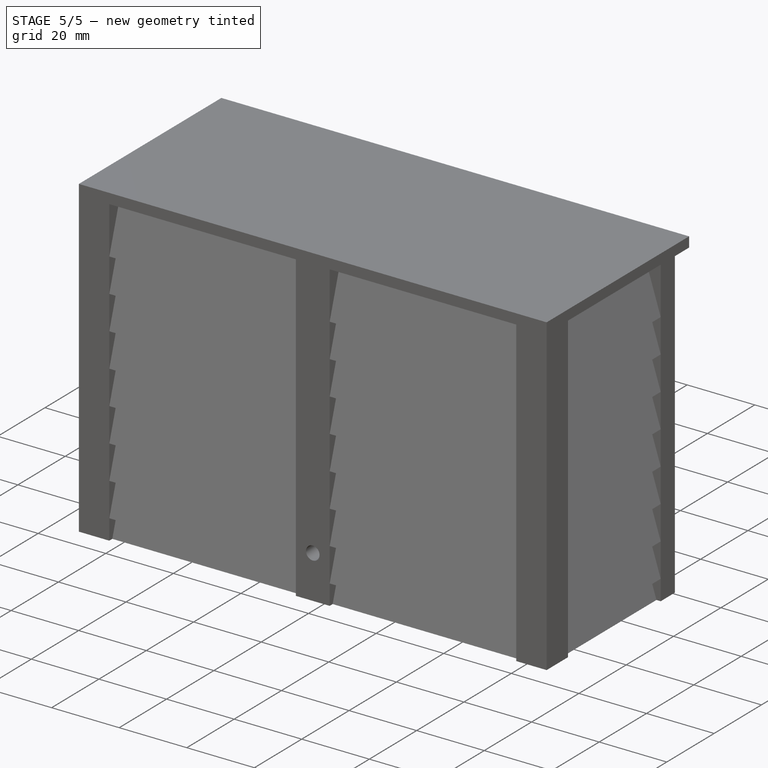
[diagram: stage 5 of 5 — iso view after this stage's code; geometry added in this stage tinted green]
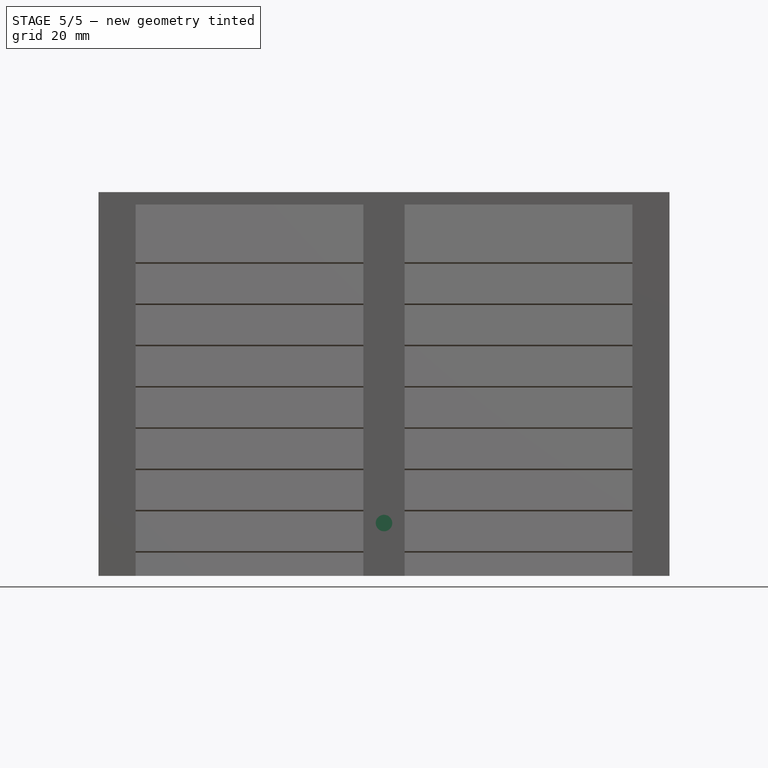
[diagram: stage 5 of 5 — front view after this stage's code; geometry added in this stage tinted green]
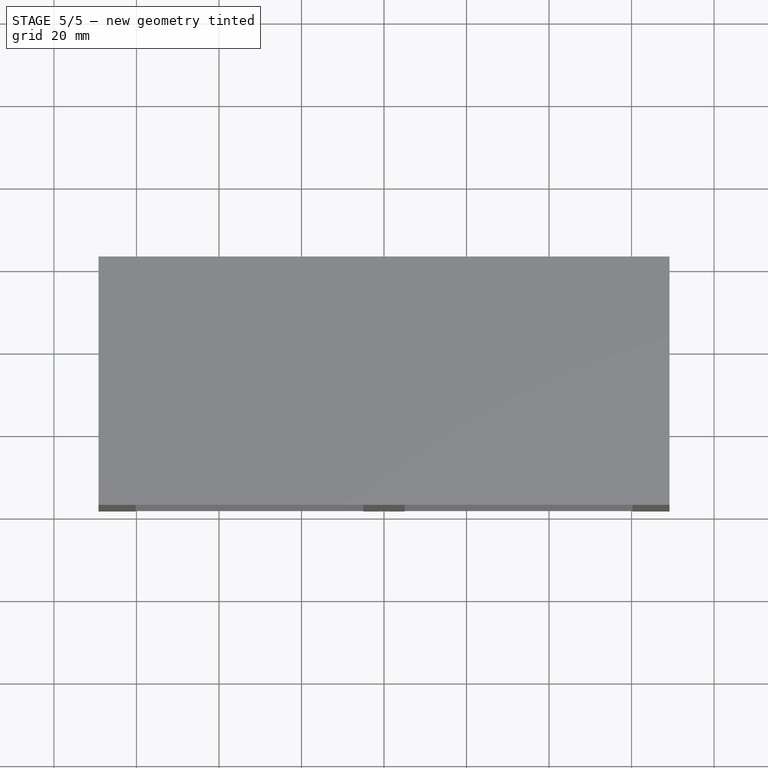
[diagram: stage 5 of 5 — top view after this stage's code; geometry added in this stage tinted green]
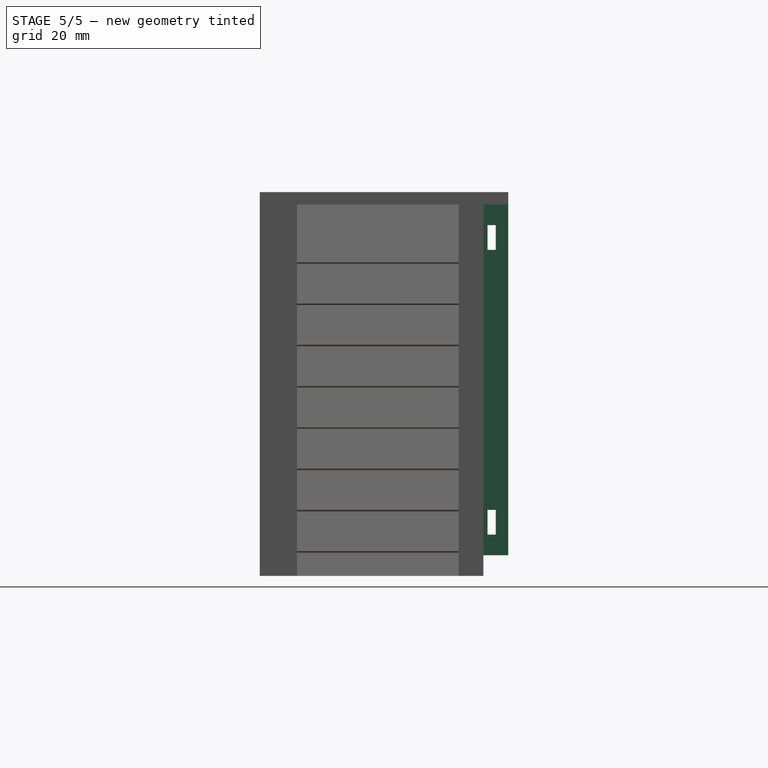
[diagram: stage 5 of 5 — right view after this stage's code; geometry added in this stage tinted green]
FEATURE [Sketcher::SketchObject] Sketch015
  ExternalGeometry = -> [Extrude016]
  FullyConstrained = true
  MapMode = 5
  Placement = pos=(0,0,2.8) rot=(0,0,1;0rad)
  Support = -> [Extrude016]
  sketch-geometry (4):
    g0: LineSegment StartX=-5 StartY=-29 StartZ=0 EndX=5 EndY=-29 EndZ=0
    g1: LineSegment StartX=5 StartY=-29 StartZ=0 EndX=5 EndY=-22 EndZ=0
    g2: LineSegment StartX=5 StartY=-22 StartZ=0 EndX=-5 EndY=-22 EndZ=0
    g3: LineSegment StartX=-5 StartY=-22 StartZ=0 EndX=-5 EndY=-29 EndZ=0
  constraints (11):
    c: Coincident(g0,g1)
    c: Coincident(g1,g2)
    c: Coincident(g2,g3)
    c: Coincident(g3,g0)
    c: Horizontal(g0)
    c: Vertical(g1)
    c: Vertical(g3)
    c: Symmetric(g2,g1,g-2)
    c: DistanceY(g1,g1) = 7
    c: DistanceX(g2,g2) = 10
    c: PointOnObject(g0,g-3)
FEATURE [Part::Extrusion] Extrude017  label="Part 1 securing basis"
  Base = -> Sketch015
  Dir = (0,0,1)
  DirMode = 2
  FaceMakerClass = Part::FaceMakerBullseye
  LengthFwd = 10
  LengthRev = 0
  Solid = true
  Symmetric = false
FEATURE [Sketcher::SketchObject] Sketch020
  FullyConstrained = true
  MapMode = 5
  Placement = pos=(0,-29,0) rot=(1,0,0;1.5708rad)
  sketch-geometry (2):
    g0: Circle CenterX=0 CenterY=7.8 CenterZ=0 NormalX=0 NormalY=0 NormalZ=1 AngleXU=0 Radius=2.05
    g1: LineSegment StartX=-5 StartY=12.8 StartZ=0 EndX=0 EndY=7.8 EndZ=0
  constraints (6):
    c: PointOnObject(g0,g-2)
    c: Coincident(g1,g0)
    c: Angle(g1) = -0.785398
    c: Radius(g0) = 2.05
    c: DistanceX(g1) = -5
    c: DistanceY(g1) = 12.8
FEATURE [Part::Extrusion] Extrude022  label="Part 1 front securing screw hole"
  Base = -> Sketch020
  Dir = (0,-1,2e-16)
  DirMode = 2
  FaceMakerClass = Part::FaceMakerBullseye
  LengthFwd = 10
  LengthRev = 0
  Reversed = true
  Solid = true
  Symmetric = false
FEATURE [Part::Cut] Cut
  Base = -> Extrude017
  Tool = -> Extrude022
FEATURE [Part::Cut] Cut002
  Base = -> Extrude016
  Tool = -> Extrude027
FEATURE [Part::MultiFuse] Fusion009  label="Part 1"
  Shapes = -> [Extrude034,Cut003,Cut002,Cut,Extrude030]
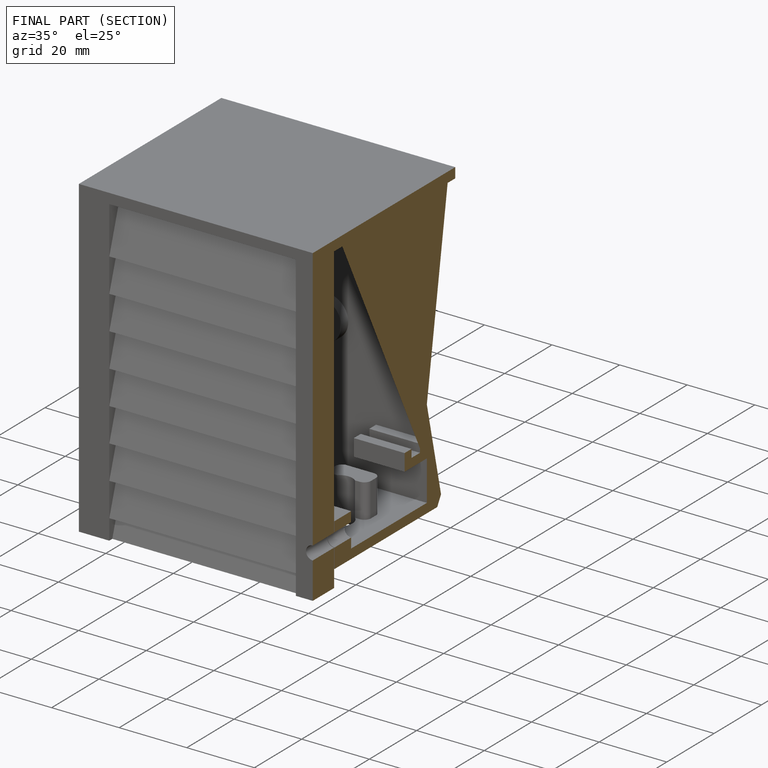
[diagram: finished part — half-section view (interior)]
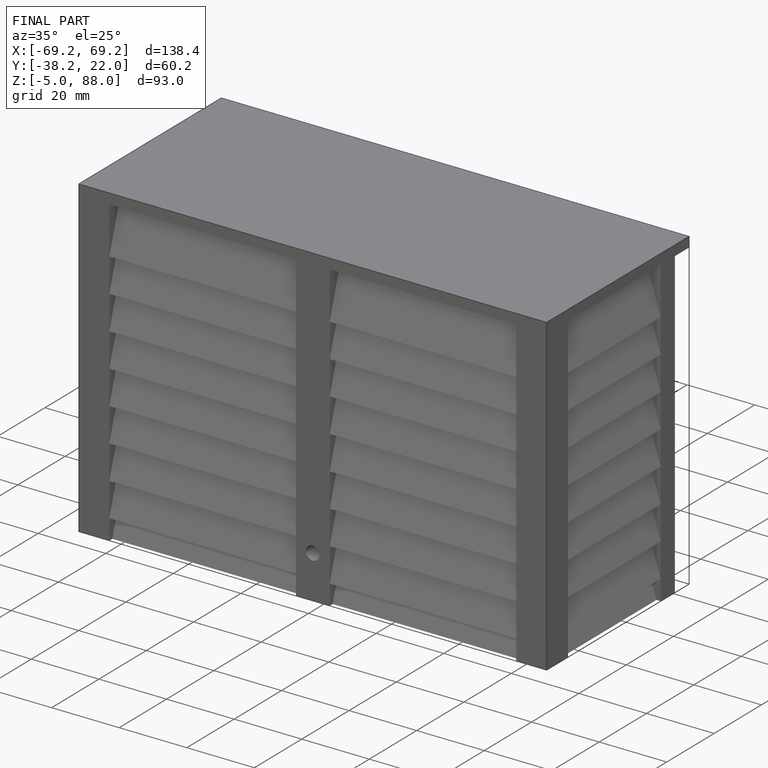
[diagram: finished part — iso view with bounding-box wireframe]
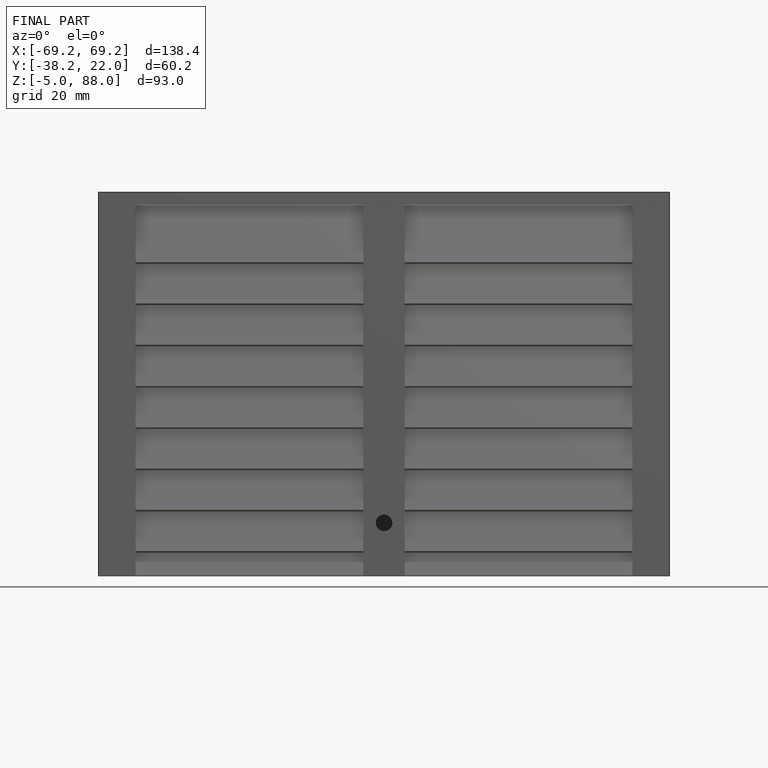
[diagram: finished part — front view with bounding-box wireframe]
